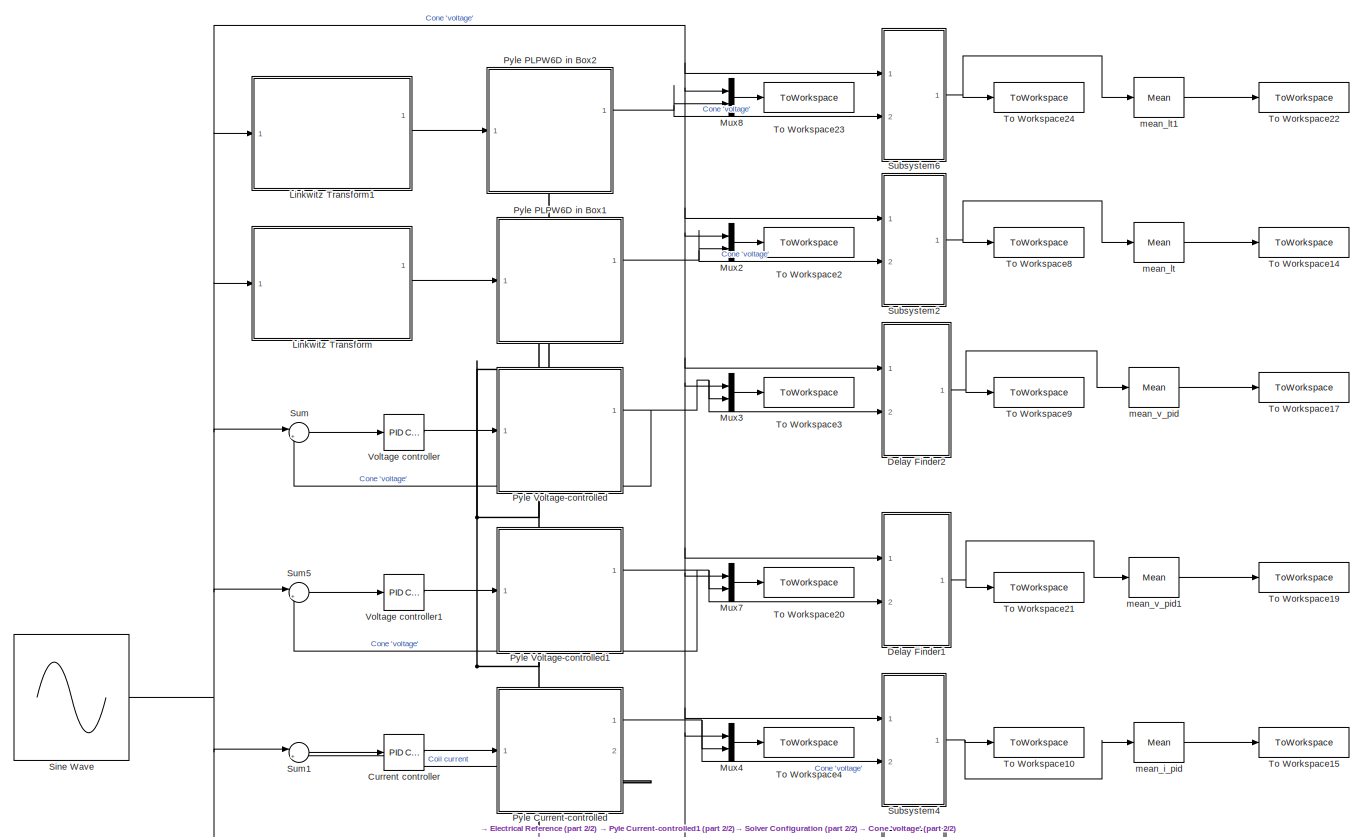
[diagram: root canvas - part 1/2, full width, top band]
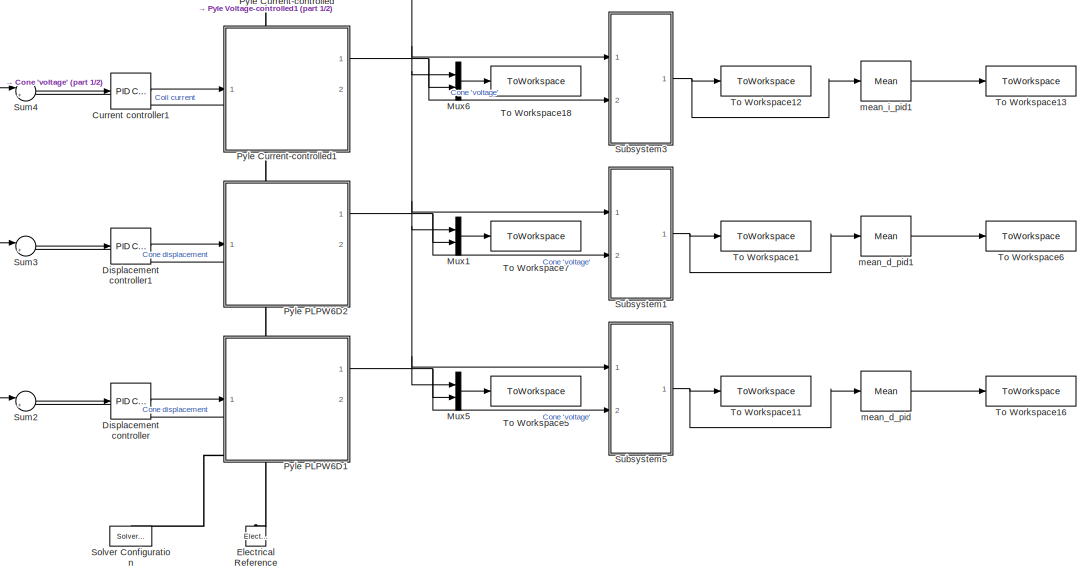
[diagram: root canvas - part 2/2, full width, bottom band]
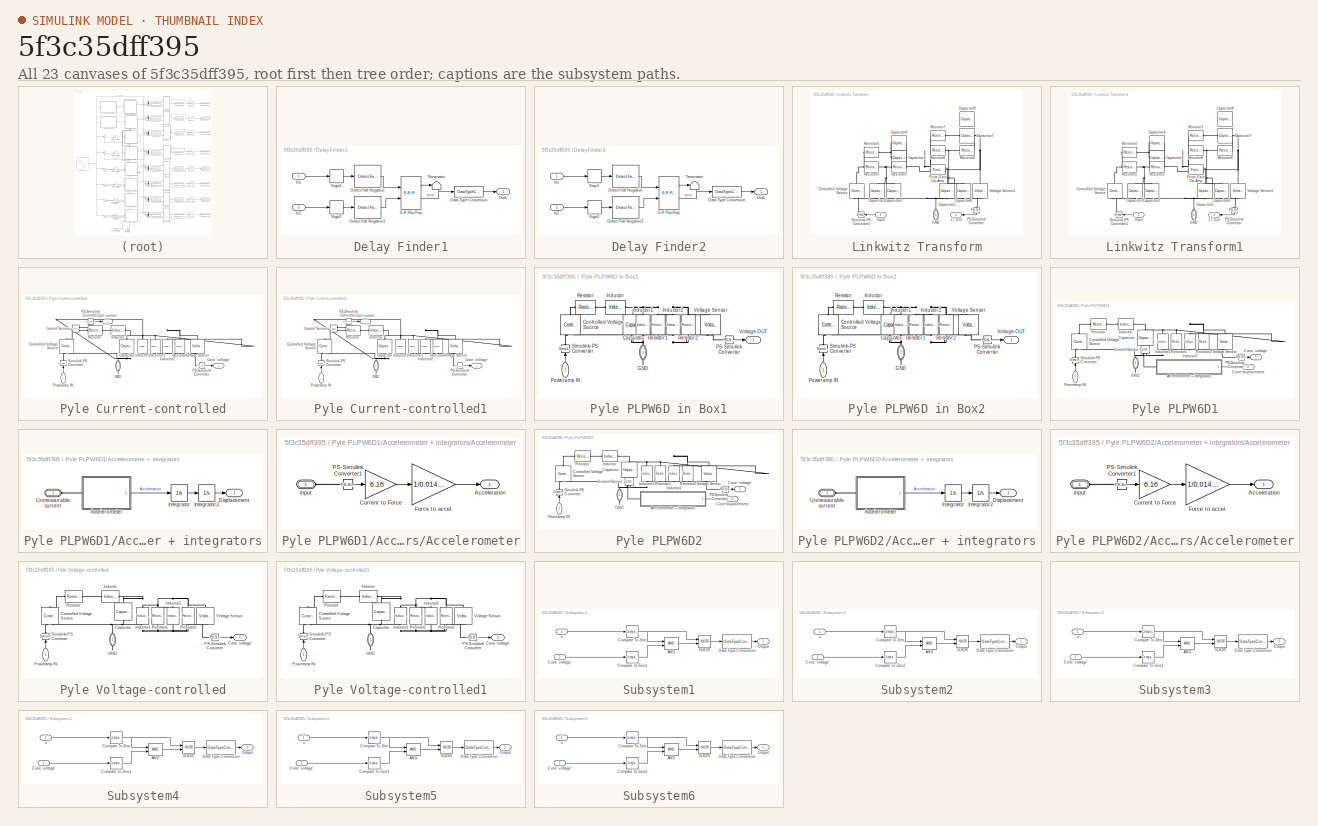
[diagram: thumbnail index - all 23 canvases of the model, root first then tree order]
MODEL slx_5f3c35dff395
KIND model
CONFIG AbsTol = auto
CONFIG EnableMultiTasking = off
CONFIG FixedStep = auto
CONFIG MaxStep = auto
CONFIG MinStep = auto
CONFIG RelTol = 1e-3
CONFIG SampleTimeConstraint = Unconstrained
CONFIG Solver = VariableStepAuto
CONFIG SolverName = VariableStepAuto
CONFIG StartTime = 0.0
CONFIG StopTime = 10.0
BLOCK [Reference] Current controller  REF=simulink/Continuous/PID Controller
  Ports = [1, 1]
  SourceBlock = simulink/Continuous/PID Controller
  SourceProductBaseCode = SL
  SourceType = PID 1dof
BLOCK [Reference] Current controller1  REF=simulink/Continuous/PID Controller
  Ports = [1, 1]
  SourceBlock = simulink/Continuous/PID Controller
  SourceProductBaseCode = SL
  SourceType = PID 1dof
BLOCK [SubSystem] Delay Finder1
  Ports = [2, 1]
  RequestExecContextInheritance = off
BLOCK [DataTypeConversion] Delay Finder1/Data Type Conversion
  OutDataTypeStr = double
  RndMeth = Floor
  SaturateOnIntegerOverflow = off
BLOCK [Reference] Delay Finder1/Detect Fall Negative  REF=simulink/Logic and Bit
Operations/Detect Fall
Negative
  Ports = [1, 1]
  SourceBlock = simulink/Logic and Bit\nOperations/Detect Fall\nNegative
  SourceProductBaseCode = SL
  SourceType = Detect Fall Negative
BLOCK [Reference] Delay Finder1/Detect Fall Negative1  REF=simulink/Logic and Bit
Operations/Detect Fall
Negative
  Ports = [1, 1]
  SourceBlock = simulink/Logic and Bit\nOperations/Detect Fall\nNegative
  SourceProductBaseCode = SL
  SourceType = Detect Fall Negative
BLOCK [Inport] Delay Finder1/In1
BLOCK [Inport] Delay Finder1/In2
  Port = 2
BLOCK [Outport] Delay Finder1/Out1
BLOCK [Reference] Delay Finder1/S-R Flip-Flop  REF=simulink_extras/Flip Flops/S-R
Flip-Flop
  Ports = [2, 2]
  SourceBlock = simulink_extras/Flip Flops/S-R\nFlip-Flop
  SourceProductBaseCode = SL
  SourceType = SRFlipFlop
BLOCK [Signum] Delay Finder1/Sign1
BLOCK [Signum] Delay Finder1/Sign2
BLOCK [Terminator] Delay Finder1/Terminator
BLOCK [SubSystem] Delay Finder2
  Ports = [2, 1]
  RequestExecContextInheritance = off
BLOCK [DataTypeConversion] Delay Finder2/Data Type Conversion
  OutDataTypeStr = double
  RndMeth = Floor
  SaturateOnIntegerOverflow = off
BLOCK [Reference] Delay Finder2/Detect Fall Negative  REF=simulink/Logic and Bit
Operations/Detect Fall
Negative
  Ports = [1, 1]
  SourceBlock = simulink/Logic and Bit\nOperations/Detect Fall\nNegative
  SourceProductBaseCode = SL
  SourceType = Detect Fall Negative
BLOCK [Reference] Delay Finder2/Detect Fall Negative1  REF=simulink/Logic and Bit
Operations/Detect Fall
Negative
  Ports = [1, 1]
  SourceBlock = simulink/Logic and Bit\nOperations/Detect Fall\nNegative
  SourceProductBaseCode = SL
  SourceType = Detect Fall Negative
BLOCK [Inport] Delay Finder2/In1
BLOCK [Inport] Delay Finder2/In2
  Port = 2
BLOCK [Outport] Delay Finder2/Out1
BLOCK [Reference] Delay Finder2/S-R Flip-Flop  REF=simulink_extras/Flip Flops/S-R
Flip-Flop
  Ports = [2, 2]
  SourceBlock = simulink_extras/Flip Flops/S-R\nFlip-Flop
  SourceProductBaseCode = SL
  SourceType = SRFlipFlop
BLOCK [Signum] Delay Finder2/Sign1
BLOCK [Signum] Delay Finder2/Sign2
BLOCK [Terminator] Delay Finder2/Terminator
BLOCK [Reference] Displacement controller  REF=simulink/Continuous/PID Controller
  Ports = [1, 1]
  SourceBlock = simulink/Continuous/PID Controller
  SourceProductBaseCode = SL
  SourceType = PID 1dof
BLOCK [Reference] Displacement controller1  REF=simulink/Continuous/PID Controller
  Ports = [1, 1]
  SourceBlock = simulink/Continuous/PID Controller
  SourceProductBaseCode = SL
  SourceType = PID 1dof
BLOCK [Reference] Electrical Reference  REF=fl_lib/Electrical/Electrical Elements/Electrical Reference
  NameLocation = right
  Ports = [0, 0, 0, 0, 0, 1]
  SourceBlock = fl_lib/Electrical/Electrical Elements/Electrical Reference
  SourceProductBaseCode = SS
  SourceType = Electrical Reference
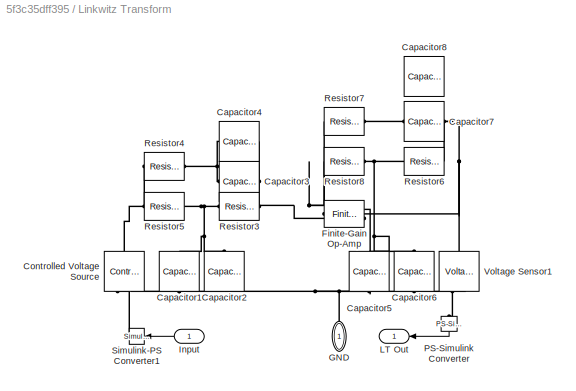
BLOCK [SubSystem] Linkwitz Transform
  PortSchema = {"entries":[{"content":{"sides":[{"content":{"connectorIds":["In1"]},"type":"ConnectorPlacement.EquallySpacedRectSide","uuid":"c176afcd-22cf-4a96-95a5-2f4a01c27625"},{"content":{"connectorIds":["Out1"],"side":"RIGHT"},"type":"ConnectorPlacement.EquallySpacedRectSide","uuid":"3d91d6b3-2fcd-4fa9-a9e2-01e15fe19188"},{"content":{"connectorIds":[],"side":"TOP"},"type":"ConnectorPlacement.EquallySpacedR...<+394ch>
  Ports = [1, 1, 0, 0, 0, 0, 1]
  RequestExecContextInheritance = off
BLOCK [Reference] Linkwitz Transform/Capacitor1  REF=fl_lib/Electrical/Electrical Elements/Capacitor
  NameLocation = left
  Ports = [0, 0, 0, 0, 0, 1, 1]
  SourceBlock = fl_lib/Electrical/Electrical Elements/Capacitor
  SourceProductBaseCode = SS
  SourceType = Capacitor
BLOCK [Reference] Linkwitz Transform/Capacitor2  REF=fl_lib/Electrical/Electrical Elements/Capacitor
  NameLocation = left
  Ports = [0, 0, 0, 0, 0, 1, 1]
  SourceBlock = fl_lib/Electrical/Electrical Elements/Capacitor
  SourceProductBaseCode = SS
  SourceType = Capacitor
BLOCK [Reference] Linkwitz Transform/Capacitor3  REF=fl_lib/Electrical/Electrical Elements/Capacitor
  Ports = [0, 0, 0, 0, 0, 1, 1]
  SourceBlock = fl_lib/Electrical/Electrical Elements/Capacitor
  SourceProductBaseCode = SS
  SourceType = Capacitor
BLOCK [Reference] Linkwitz Transform/Capacitor4  REF=fl_lib/Electrical/Electrical Elements/Capacitor
  Ports = [0, 0, 0, 0, 0, 1, 1]
  SourceBlock = fl_lib/Electrical/Electrical Elements/Capacitor
  SourceProductBaseCode = SS
  SourceType = Capacitor
BLOCK [Reference] Linkwitz Transform/Capacitor5  REF=fl_lib/Electrical/Electrical Elements/Capacitor
  NameLocation = left
  Ports = [0, 0, 0, 0, 0, 1, 1]
  SourceBlock = fl_lib/Electrical/Electrical Elements/Capacitor
  SourceProductBaseCode = SS
  SourceType = Capacitor
BLOCK [Reference] Linkwitz Transform/Capacitor6  REF=fl_lib/Electrical/Electrical Elements/Capacitor
  NameLocation = left
  Ports = [0, 0, 0, 0, 0, 1, 1]
  SourceBlock = fl_lib/Electrical/Electrical Elements/Capacitor
  SourceProductBaseCode = SS
  SourceType = Capacitor
BLOCK [Reference] Linkwitz Transform/Capacitor7  REF=fl_lib/Electrical/Electrical Elements/Capacitor
  Ports = [0, 0, 0, 0, 0, 1, 1]
  SourceBlock = fl_lib/Electrical/Electrical Elements/Capacitor
  SourceProductBaseCode = SS
  SourceType = Capacitor
BLOCK [Reference] Linkwitz Transform/Capacitor8  REF=fl_lib/Electrical/Electrical Elements/Capacitor
  Ports = [0, 0, 0, 0, 0, 1, 1]
  SourceBlock = fl_lib/Electrical/Electrical Elements/Capacitor
  SourceProductBaseCode = SS
  SourceType = Capacitor
BLOCK [Reference] Linkwitz Transform/Controlled Voltage Source  REF=fl_lib/Electrical/Electrical Sources/Controlled Voltage
Source
  NameLocation = right
  Ports = [0, 0, 0, 0, 0, 1, 2]
  SourceBlock = fl_lib/Electrical/Electrical Sources/Controlled Voltage\nSource
  SourceProductBaseCode = SS
  SourceType = Controlled Voltage\nSource
BLOCK [Reference] Linkwitz Transform/Finite-Gain Op-Amp  REF=ee_lib/Integrated Circuits/Finite-Gain Op-Amp
  Ports = [0, 0, 0, 0, 0, 2, 1]
  SourceBlock = ee_lib/Integrated Circuits/Finite-Gain Op-Amp
  SourceProductBaseCode = PS
  SourceType = Finite-Gain Op-Amp
BLOCK [PMIOPort] Linkwitz Transform/GND
  NameLocation = left
  Side = Right
BLOCK [Inport] Linkwitz Transform/Input
  NameLocation = top
BLOCK [Outport] Linkwitz Transform/LT Out
  NameLocation = top
BLOCK [Reference] Linkwitz Transform/PS-Simulink Converter  REF=nesl_utility/PS-Simulink
Converter
  NameLocation = left
  Ports = [0, 1, 0, 0, 0, 1]
  SourceBlock = nesl_utility/PS-Simulink\nConverter
  SourceProductBaseCode = SS
  SourceType = PS-Simulink\nConverter
BLOCK [Reference] Linkwitz Transform/Resistor3  REF=fl_lib/Electrical/Electrical Elements/Resistor
  Ports = [0, 0, 0, 0, 0, 1, 1]
  SourceBlock = fl_lib/Electrical/Electrical Elements/Resistor
  SourceProductBaseCode = SS
  SourceType = Resistor
BLOCK [Reference] Linkwitz Transform/Resistor4  REF=fl_lib/Electrical/Electrical Elements/Resistor
  Ports = [0, 0, 0, 0, 0, 1, 1]
  SourceBlock = fl_lib/Electrical/Electrical Elements/Resistor
  SourceProductBaseCode = SS
  SourceType = Resistor
BLOCK [Reference] Linkwitz Transform/Resistor5  REF=fl_lib/Electrical/Electrical Elements/Resistor
  Ports = [0, 0, 0, 0, 0, 1, 1]
  SourceBlock = fl_lib/Electrical/Electrical Elements/Resistor
  SourceProductBaseCode = SS
  SourceType = Resistor
BLOCK [Reference] Linkwitz Transform/Resistor6  REF=fl_lib/Electrical/Electrical Elements/Resistor
  Ports = [0, 0, 0, 0, 0, 1, 1]
  SourceBlock = fl_lib/Electrical/Electrical Elements/Resistor
  SourceProductBaseCode = SS
  SourceType = Resistor
BLOCK [Reference] Linkwitz Transform/Resistor7  REF=fl_lib/Electrical/Electrical Elements/Resistor
  Ports = [0, 0, 0, 0, 0, 1, 1]
  SourceBlock = fl_lib/Electrical/Electrical Elements/Resistor
  SourceProductBaseCode = SS
  SourceType = Resistor
BLOCK [Reference] Linkwitz Transform/Resistor8  REF=fl_lib/Electrical/Electrical Elements/Resistor
  Ports = [0, 0, 0, 0, 0, 1, 1]
  SourceBlock = fl_lib/Electrical/Electrical Elements/Resistor
  SourceProductBaseCode = SS
  SourceType = Resistor
BLOCK [Reference] Linkwitz Transform/Simulink-PS Converter1  REF=nesl_utility/Simulink-PS
Converter
  NameLocation = top
  Ports = [1, 0, 0, 0, 0, 0, 1]
  SourceBlock = nesl_utility/Simulink-PS\nConverter
  SourceProductBaseCode = SS
  SourceType = Simulink-PS\nConverter
BLOCK [Reference] Linkwitz Transform/Voltage Sensor1  REF=fl_lib/Electrical/Electrical Sensors/Voltage Sensor
  NameLocation = right
  Ports = [0, 0, 0, 0, 0, 1, 2]
  SourceBlock = fl_lib/Electrical/Electrical Sensors/Voltage Sensor
  SourceProductBaseCode = SS
  SourceType = Voltage Sensor
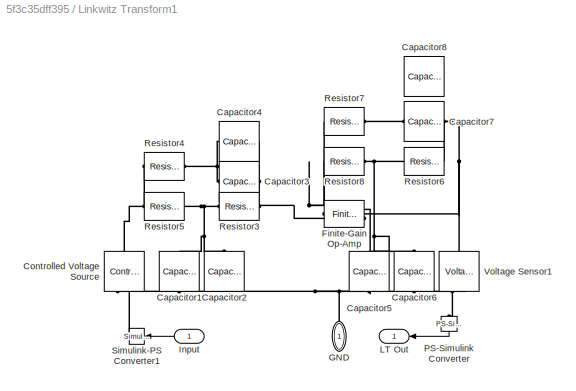
BLOCK [SubSystem] Linkwitz Transform1
  PortSchema = {"entries":[{"content":{"sides":[{"content":{"connectorIds":["In1"]},"type":"ConnectorPlacement.EquallySpacedRectSide","uuid":"c176afcd-22cf-4a96-95a5-2f4a01c27625"},{"content":{"connectorIds":["Out1"],"side":"RIGHT"},"type":"ConnectorPlacement.EquallySpacedRectSide","uuid":"3d91d6b3-2fcd-4fa9-a9e2-01e15fe19188"},{"content":{"connectorIds":[],"side":"TOP"},"type":"ConnectorPlacement.EquallySpacedR...<+394ch>
  Ports = [1, 1, 0, 0, 0, 0, 1]
  RequestExecContextInheritance = off
BLOCK [Reference] Linkwitz Transform1/Capacitor1  REF=fl_lib/Electrical/Electrical Elements/Capacitor
  NameLocation = left
  Ports = [0, 0, 0, 0, 0, 1, 1]
  SourceBlock = fl_lib/Electrical/Electrical Elements/Capacitor
  SourceProductBaseCode = SS
  SourceType = Capacitor
BLOCK [Reference] Linkwitz Transform1/Capacitor2  REF=fl_lib/Electrical/Electrical Elements/Capacitor
  NameLocation = left
  Ports = [0, 0, 0, 0, 0, 1, 1]
  SourceBlock = fl_lib/Electrical/Electrical Elements/Capacitor
  SourceProductBaseCode = SS
  SourceType = Capacitor
BLOCK [Reference] Linkwitz Transform1/Capacitor3  REF=fl_lib/Electrical/Electrical Elements/Capacitor
  Ports = [0, 0, 0, 0, 0, 1, 1]
  SourceBlock = fl_lib/Electrical/Electrical Elements/Capacitor
  SourceProductBaseCode = SS
  SourceType = Capacitor
BLOCK [Reference] Linkwitz Transform1/Capacitor4  REF=fl_lib/Electrical/Electrical Elements/Capacitor
  Ports = [0, 0, 0, 0, 0, 1, 1]
  SourceBlock = fl_lib/Electrical/Electrical Elements/Capacitor
  SourceProductBaseCode = SS
  SourceType = Capacitor
BLOCK [Reference] Linkwitz Transform1/Capacitor5  REF=fl_lib/Electrical/Electrical Elements/Capacitor
  NameLocation = left
  Ports = [0, 0, 0, 0, 0, 1, 1]
  SourceBlock = fl_lib/Electrical/Electrical Elements/Capacitor
  SourceProductBaseCode = SS
  SourceType = Capacitor
BLOCK [Reference] Linkwitz Transform1/Capacitor6  REF=fl_lib/Electrical/Electrical Elements/Capacitor
  NameLocation = left
  Ports = [0, 0, 0, 0, 0, 1, 1]
  SourceBlock = fl_lib/Electrical/Electrical Elements/Capacitor
  SourceProductBaseCode = SS
  SourceType = Capacitor
BLOCK [Reference] Linkwitz Transform1/Capacitor7  REF=fl_lib/Electrical/Electrical Elements/Capacitor
  Ports = [0, 0, 0, 0, 0, 1, 1]
  SourceBlock = fl_lib/Electrical/Electrical Elements/Capacitor
  SourceProductBaseCode = SS
  SourceType = Capacitor
BLOCK [Reference] Linkwitz Transform1/Capacitor8  REF=fl_lib/Electrical/Electrical Elements/Capacitor
  Ports = [0, 0, 0, 0, 0, 1, 1]
  SourceBlock = fl_lib/Electrical/Electrical Elements/Capacitor
  SourceProductBaseCode = SS
  SourceType = Capacitor
BLOCK [Reference] Linkwitz Transform1/Controlled Voltage Source  REF=fl_lib/Electrical/Electrical Sources/Controlled Voltage
Source
  NameLocation = right
  Ports = [0, 0, 0, 0, 0, 1, 2]
  SourceBlock = fl_lib/Electrical/Electrical Sources/Controlled Voltage\nSource
  SourceProductBaseCode = SS
  SourceType = Controlled Voltage\nSource
BLOCK [Reference] Linkwitz Transform1/Finite-Gain Op-Amp  REF=ee_lib/Integrated Circuits/Finite-Gain Op-Amp
  Ports = [0, 0, 0, 0, 0, 2, 1]
  SourceBlock = ee_lib/Integrated Circuits/Finite-Gain Op-Amp
  SourceProductBaseCode = PS
  SourceType = Finite-Gain Op-Amp
BLOCK [PMIOPort] Linkwitz Transform1/GND
  NameLocation = left
  Side = Right
BLOCK [Inport] Linkwitz Transform1/Input
  NameLocation = top
BLOCK [Outport] Linkwitz Transform1/LT Out
  NameLocation = top
BLOCK [Reference] Linkwitz Transform1/PS-Simulink Converter  REF=nesl_utility/PS-Simulink
Converter
  NameLocation = left
  Ports = [0, 1, 0, 0, 0, 1]
  SourceBlock = nesl_utility/PS-Simulink\nConverter
  SourceProductBaseCode = SS
  SourceType = PS-Simulink\nConverter
BLOCK [Reference] Linkwitz Transform1/Resistor3  REF=fl_lib/Electrical/Electrical Elements/Resistor
  Ports = [0, 0, 0, 0, 0, 1, 1]
  SourceBlock = fl_lib/Electrical/Electrical Elements/Resistor
  SourceProductBaseCode = SS
  SourceType = Resistor
BLOCK [Reference] Linkwitz Transform1/Resistor4  REF=fl_lib/Electrical/Electrical Elements/Resistor
  Ports = [0, 0, 0, 0, 0, 1, 1]
  SourceBlock = fl_lib/Electrical/Electrical Elements/Resistor
  SourceProductBaseCode = SS
  SourceType = Resistor
BLOCK [Reference] Linkwitz Transform1/Resistor5  REF=fl_lib/Electrical/Electrical Elements/Resistor
  Ports = [0, 0, 0, 0, 0, 1, 1]
  SourceBlock = fl_lib/Electrical/Electrical Elements/Resistor
  SourceProductBaseCode = SS
  SourceType = Resistor
BLOCK [Reference] Linkwitz Transform1/Resistor6  REF=fl_lib/Electrical/Electrical Elements/Resistor
  Ports = [0, 0, 0, 0, 0, 1, 1]
  SourceBlock = fl_lib/Electrical/Electrical Elements/Resistor
  SourceProductBaseCode = SS
  SourceType = Resistor
BLOCK [Reference] Linkwitz Transform1/Resistor7  REF=fl_lib/Electrical/Electrical Elements/Resistor
  Ports = [0, 0, 0, 0, 0, 1, 1]
  SourceBlock = fl_lib/Electrical/Electrical Elements/Resistor
  SourceProductBaseCode = SS
  SourceType = Resistor
BLOCK [Reference] Linkwitz Transform1/Resistor8  REF=fl_lib/Electrical/Electrical Elements/Resistor
  Ports = [0, 0, 0, 0, 0, 1, 1]
  SourceBlock = fl_lib/Electrical/Electrical Elements/Resistor
  SourceProductBaseCode = SS
  SourceType = Resistor
BLOCK [Reference] Linkwitz Transform1/Simulink-PS Converter1  REF=nesl_utility/Simulink-PS
Converter
  NameLocation = top
  Ports = [1, 0, 0, 0, 0, 0, 1]
  SourceBlock = nesl_utility/Simulink-PS\nConverter
  SourceProductBaseCode = SS
  SourceType = Simulink-PS\nConverter
BLOCK [Reference] Linkwitz Transform1/Voltage Sensor1  REF=fl_lib/Electrical/Electrical Sensors/Voltage Sensor
  NameLocation = right
  Ports = [0, 0, 0, 0, 0, 1, 2]
  SourceBlock = fl_lib/Electrical/Electrical Sensors/Voltage Sensor
  SourceProductBaseCode = SS
  SourceType = Voltage Sensor
BLOCK [Mux] Mux1
  DisplayOption = bar
  Inputs = 2
  Ports = [2, 1]
BLOCK [Mux] Mux2
  DisplayOption = bar
  Inputs = 2
  Ports = [2, 1]
BLOCK [Mux] Mux3
  DisplayOption = bar
  Inputs = 2
  Ports = [2, 1]
BLOCK [Mux] Mux4
  DisplayOption = bar
  Inputs = 2
  Ports = [2, 1]
BLOCK [Mux] Mux5
  DisplayOption = bar
  Inputs = 2
  Ports = [2, 1]
BLOCK [Mux] Mux6
  DisplayOption = bar
  Inputs = 2
  Ports = [2, 1]
BLOCK [Mux] Mux7
  DisplayOption = bar
  Inputs = 2
  Ports = [2, 1]
BLOCK [Mux] Mux8
  DisplayOption = bar
  Inputs = 2
  Ports = [2, 1]
BLOCK [SubSystem] Pyle Current-controlled
  PortSchema = {"entries":[{"content":{"sides":[{"content":{"connectorIds":["In1"]},"type":"ConnectorPlacement.EquallySpacedRectSide","uuid":"55797129-f68c-4c08-9179-5bd73ddaf456"},{"content":{"connectorIds":["Out1"],"side":"RIGHT"},"type":"ConnectorPlacement.EquallySpacedRectSide","uuid":"cd82eb0c-b61b-42dc-852e-e59ea1718ce1"},{"content":{"connectorIds":[],"side":"TOP"},"type":"ConnectorPlacement.EquallySpacedR...<+401ch>  <repeated x4 — deduplicated; at blocks: Pyle Current-controlled, Pyle Current-controlled1, Pyle PLPW6D1, Pyle PLPW6D2>
  Ports = [1, 2, 0, 0, 0, 0, 1]
  RequestExecContextInheritance = off
BLOCK [Reference] Pyle Current-controlled/Capacitor  REF=fl_lib/Electrical/Electrical Elements/Capacitor
  NameLocation = left
  Ports = [0, 0, 0, 0, 0, 1, 1]
  SourceBlock = fl_lib/Electrical/Electrical Elements/Capacitor
  SourceProductBaseCode = SS
  SourceType = Capacitor
BLOCK [Outport] Pyle Current-controlled/Coil current
  Port = 2
BLOCK [Outport] Pyle Current-controlled/Cone 'voltage'
BLOCK [Reference] Pyle Current-controlled/Controlled Voltage Source  REF=fl_lib/Electrical/Electrical Sources/Controlled Voltage
Source
  NameLocation = right
  Ports = [0, 0, 0, 0, 0, 1, 2]
  SourceBlock = fl_lib/Electrical/Electrical Sources/Controlled Voltage\nSource
  SourceProductBaseCode = SS
  SourceType = Controlled Voltage\nSource
BLOCK [Reference] Pyle Current-controlled/Current Sensor  REF=fl_lib/Electrical/Electrical Sensors/Current Sensor
  Ports = [0, 0, 0, 0, 0, 1, 2]
  SourceBlock = fl_lib/Electrical/Electrical Sensors/Current Sensor
  SourceProductBaseCode = MT,SS
  SourceType = Current Sensor
BLOCK [PMIOPort] Pyle Current-controlled/GND
  NameLocation = left
  Side = Right
BLOCK [Reference] Pyle Current-controlled/Inductor  REF=fl_lib/Electrical/Electrical Elements/Inductor
  Ports = [0, 0, 0, 0, 0, 1, 1]
  SourceBlock = fl_lib/Electrical/Electrical Elements/Inductor
  SourceProductBaseCode = SS
  SourceType = Inductor
BLOCK [Reference] Pyle Current-controlled/Inductor1  REF=fl_lib/Electrical/Electrical Elements/Inductor
  NameLocation = left
  Ports = [0, 0, 0, 0, 0, 1, 1]
  SourceBlock = fl_lib/Electrical/Electrical Elements/Inductor
  SourceProductBaseCode = SS
  SourceType = Inductor
BLOCK [Reference] Pyle Current-controlled/Inductor2  REF=fl_lib/Electrical/Electrical Elements/Inductor
  NameLocation = left
  Ports = [0, 0, 0, 0, 0, 1, 1]
  SourceBlock = fl_lib/Electrical/Electrical Elements/Inductor
  SourceProductBaseCode = SS
  SourceType = Inductor
BLOCK [Reference] Pyle Current-controlled/PS-Simulink Converter  REF=nesl_utility/PS-Simulink
Converter
  Ports = [0, 1, 0, 0, 0, 1]
  SourceBlock = nesl_utility/PS-Simulink\nConverter
  SourceProductBaseCode = SS
  SourceType = PS-Simulink\nConverter
BLOCK [Reference] Pyle Current-controlled/PS-Simulink Converter1  REF=nesl_utility/PS-Simulink
Converter
  Ports = [0, 1, 0, 0, 0, 1]
  SourceBlock = nesl_utility/PS-Simulink\nConverter
  SourceProductBaseCode = SS
  SourceType = PS-Simulink\nConverter
BLOCK [Inport] Pyle Current-controlled/Poweramp IN
  NameLocation = right
BLOCK [Reference] Pyle Current-controlled/Resistor  REF=fl_lib/Electrical/Electrical Elements/Resistor
  Ports = [0, 0, 0, 0, 0, 1, 1]
  SourceBlock = fl_lib/Electrical/Electrical Elements/Resistor
  SourceProductBaseCode = SS
  SourceType = Resistor
BLOCK [Reference] Pyle Current-controlled/Resistor1  REF=fl_lib/Electrical/Electrical Elements/Resistor
  NameLocation = left
  Ports = [0, 0, 0, 0, 0, 1, 1]
  SourceBlock = fl_lib/Electrical/Electrical Elements/Resistor
  SourceProductBaseCode = SS
  SourceType = Resistor
BLOCK [Reference] Pyle Current-controlled/Resistor2  REF=fl_lib/Electrical/Electrical Elements/Resistor
  NameLocation = left
  Ports = [0, 0, 0, 0, 0, 1, 1]
  SourceBlock = fl_lib/Electrical/Electrical Elements/Resistor
  SourceProductBaseCode = SS
  SourceType = Resistor
BLOCK [Reference] Pyle Current-controlled/Simulink-PS Converter  REF=nesl_utility/Simulink-PS
Converter
  NameLocation = right
  Ports = [1, 0, 0, 0, 0, 0, 1]
  SourceBlock = nesl_utility/Simulink-PS\nConverter
  SourceProductBaseCode = SS
  SourceType = Simulink-PS\nConverter
BLOCK [Reference] Pyle Current-controlled/Voltage Sensor  REF=fl_lib/Electrical/Electrical Sensors/Voltage Sensor
  NameLocation = right
  Ports = [0, 0, 0, 0, 0, 1, 2]
  SourceBlock = fl_lib/Electrical/Electrical Sensors/Voltage Sensor
  SourceProductBaseCode = SS
  SourceType = Voltage Sensor
BLOCK [SubSystem] Pyle Current-controlled1
  Ports = [1, 2, 0, 0, 0, 0, 1]
  RequestExecContextInheritance = off
BLOCK [Reference] Pyle Current-controlled1/Capacitor  REF=fl_lib/Electrical/Electrical Elements/Capacitor
  NameLocation = left
  Ports = [0, 0, 0, 0, 0, 1, 1]
  SourceBlock = fl_lib/Electrical/Electrical Elements/Capacitor
  SourceProductBaseCode = SS
  SourceType = Capacitor
BLOCK [Outport] Pyle Current-controlled1/Coil current
  Port = 2
BLOCK [Outport] Pyle Current-controlled1/Cone 'voltage'
BLOCK [Reference] Pyle Current-controlled1/Controlled Voltage Source  REF=fl_lib/Electrical/Electrical Sources/Controlled Voltage
Source
  NameLocation = right
  Ports = [0, 0, 0, 0, 0, 1, 2]
  SourceBlock = fl_lib/Electrical/Electrical Sources/Controlled Voltage\nSource
  SourceProductBaseCode = SS
  SourceType = Controlled Voltage\nSource
BLOCK [Reference] Pyle Current-controlled1/Current Sensor  REF=fl_lib/Electrical/Electrical Sensors/Current Sensor
  Ports = [0, 0, 0, 0, 0, 1, 2]
  SourceBlock = fl_lib/Electrical/Electrical Sensors/Current Sensor
  SourceProductBaseCode = MT,SS
  SourceType = Current Sensor
BLOCK [PMIOPort] Pyle Current-controlled1/GND
  NameLocation = left
  Side = Right
BLOCK [Reference] Pyle Current-controlled1/Inductor  REF=fl_lib/Electrical/Electrical Elements/Inductor
  Ports = [0, 0, 0, 0, 0, 1, 1]
  SourceBlock = fl_lib/Electrical/Electrical Elements/Inductor
  SourceProductBaseCode = SS
  SourceType = Inductor
BLOCK [Reference] Pyle Current-controlled1/Inductor1  REF=fl_lib/Electrical/Electrical Elements/Inductor
  NameLocation = left
  Ports = [0, 0, 0, 0, 0, 1, 1]
  SourceBlock = fl_lib/Electrical/Electrical Elements/Inductor
  SourceProductBaseCode = SS
  SourceType = Inductor
BLOCK [Reference] Pyle Current-controlled1/Inductor2  REF=fl_lib/Electrical/Electrical Elements/Inductor
  NameLocation = left
  Ports = [0, 0, 0, 0, 0, 1, 1]
  SourceBlock = fl_lib/Electrical/Electrical Elements/Inductor
  SourceProductBaseCode = SS
  SourceType = Inductor
BLOCK [Reference] Pyle Current-controlled1/PS-Simulink Converter  REF=nesl_utility/PS-Simulink
Converter
  Ports = [0, 1, 0, 0, 0, 1]
  SourceBlock = nesl_utility/PS-Simulink\nConverter
  SourceProductBaseCode = SS
  SourceType = PS-Simulink\nConverter
BLOCK [Reference] Pyle Current-controlled1/PS-Simulink Converter1  REF=nesl_utility/PS-Simulink
Converter
  Ports = [0, 1, 0, 0, 0, 1]
  SourceBlock = nesl_utility/PS-Simulink\nConverter
  SourceProductBaseCode = SS
  SourceType = PS-Simulink\nConverter
BLOCK [Inport] Pyle Current-controlled1/Poweramp IN
  NameLocation = right
BLOCK [Reference] Pyle Current-controlled1/Resistor  REF=fl_lib/Electrical/Electrical Elements/Resistor
  Ports = [0, 0, 0, 0, 0, 1, 1]
  SourceBlock = fl_lib/Electrical/Electrical Elements/Resistor
  SourceProductBaseCode = SS
  SourceType = Resistor
BLOCK [Reference] Pyle Current-controlled1/Resistor1  REF=fl_lib/Electrical/Electrical Elements/Resistor
  NameLocation = left
  Ports = [0, 0, 0, 0, 0, 1, 1]
  SourceBlock = fl_lib/Electrical/Electrical Elements/Resistor
  SourceProductBaseCode = SS
  SourceType = Resistor
BLOCK [Reference] Pyle Current-controlled1/Resistor2  REF=fl_lib/Electrical/Electrical Elements/Resistor
  NameLocation = left
  Ports = [0, 0, 0, 0, 0, 1, 1]
  SourceBlock = fl_lib/Electrical/Electrical Elements/Resistor
  SourceProductBaseCode = SS
  SourceType = Resistor
BLOCK [Reference] Pyle Current-controlled1/Simulink-PS Converter  REF=nesl_utility/Simulink-PS
Converter
  NameLocation = right
  Ports = [1, 0, 0, 0, 0, 0, 1]
  SourceBlock = nesl_utility/Simulink-PS\nConverter
  SourceProductBaseCode = SS
  SourceType = Simulink-PS\nConverter
BLOCK [Reference] Pyle Current-controlled1/Voltage Sensor  REF=fl_lib/Electrical/Electrical Sensors/Voltage Sensor
  NameLocation = right
  Ports = [0, 0, 0, 0, 0, 1, 2]
  SourceBlock = fl_lib/Electrical/Electrical Sensors/Voltage Sensor
  SourceProductBaseCode = SS
  SourceType = Voltage Sensor
BLOCK [SubSystem] Pyle PLPW6D in Box1
  PortSchema = {"entries":[{"content":{"sides":[{"content":{"connectorIds":["In1"]},"type":"ConnectorPlacement.EquallySpacedRectSide","uuid":"55797129-f68c-4c08-9179-5bd73ddaf456"},{"content":{"connectorIds":["Out1"],"side":"RIGHT"},"type":"ConnectorPlacement.EquallySpacedRectSide","uuid":"cd82eb0c-b61b-42dc-852e-e59ea1718ce1"},{"content":{"connectorIds":[],"side":"TOP"},"type":"ConnectorPlacement.EquallySpacedR...<+394ch>  <repeated x4 — deduplicated; at blocks: Pyle PLPW6D in Box1, Pyle PLPW6D in Box2, Pyle Voltage-controlled, Pyle Voltage-controlled1>
  Ports = [1, 1, 0, 0, 0, 0, 1]
  RequestExecContextInheritance = off
BLOCK [Reference] Pyle PLPW6D in Box1/Capacitor  REF=fl_lib/Electrical/Electrical Elements/Capacitor
  NameLocation = left
  Ports = [0, 0, 0, 0, 0, 1, 1]
  SourceBlock = fl_lib/Electrical/Electrical Elements/Capacitor
  SourceProductBaseCode = SS
  SourceType = Capacitor
BLOCK [Reference] Pyle PLPW6D in Box1/Controlled Voltage Source  REF=fl_lib/Electrical/Electrical Sources/Controlled Voltage
Source
  NameLocation = right
  Ports = [0, 0, 0, 0, 0, 1, 2]
  SourceBlock = fl_lib/Electrical/Electrical Sources/Controlled Voltage\nSource
  SourceProductBaseCode = SS
  SourceType = Controlled Voltage\nSource
BLOCK [PMIOPort] Pyle PLPW6D in Box1/GND
  NameLocation = left
  Side = Right
BLOCK [Reference] Pyle PLPW6D in Box1/Inductor  REF=fl_lib/Electrical/Electrical Elements/Inductor
  Ports = [0, 0, 0, 0, 0, 1, 1]
  SourceBlock = fl_lib/Electrical/Electrical Elements/Inductor
  SourceProductBaseCode = SS
  SourceType = Inductor
BLOCK [Reference] Pyle PLPW6D in Box1/Inductor1  REF=fl_lib/Electrical/Electrical Elements/Inductor
  NameLocation = left
  Ports = [0, 0, 0, 0, 0, 1, 1]
  SourceBlock = fl_lib/Electrical/Electrical Elements/Inductor
  SourceProductBaseCode = SS
  SourceType = Inductor
BLOCK [Reference] Pyle PLPW6D in Box1/Inductor2  REF=fl_lib/Electrical/Electrical Elements/Inductor
  NameLocation = left
  Ports = [0, 0, 0, 0, 0, 1, 1]
  SourceBlock = fl_lib/Electrical/Electrical Elements/Inductor
  SourceProductBaseCode = SS
  SourceType = Inductor
BLOCK [Reference] Pyle PLPW6D in Box1/PS-Simulink Converter  REF=nesl_utility/PS-Simulink
Converter
  Ports = [0, 1, 0, 0, 0, 1]
  SourceBlock = nesl_utility/PS-Simulink\nConverter
  SourceProductBaseCode = SS
  SourceType = PS-Simulink\nConverter
BLOCK [Inport] Pyle PLPW6D in Box1/Poweramp IN
  NameLocation = right
BLOCK [Reference] Pyle PLPW6D in Box1/Resistor  REF=fl_lib/Electrical/Electrical Elements/Resistor
  Ports = [0, 0, 0, 0, 0, 1, 1]
  SourceBlock = fl_lib/Electrical/Electrical Elements/Resistor
  SourceProductBaseCode = SS
  SourceType = Resistor
BLOCK [Reference] Pyle PLPW6D in Box1/Resistor1  REF=fl_lib/Electrical/Electrical Elements/Resistor
  NameLocation = left
  Ports = [0, 0, 0, 0, 0, 1, 1]
  SourceBlock = fl_lib/Electrical/Electrical Elements/Resistor
  SourceProductBaseCode = SS
  SourceType = Resistor
BLOCK [Reference] Pyle PLPW6D in Box1/Resistor2  REF=fl_lib/Electrical/Electrical Elements/Resistor
  NameLocation = left
  Ports = [0, 0, 0, 0, 0, 1, 1]
  SourceBlock = fl_lib/Electrical/Electrical Elements/Resistor
  SourceProductBaseCode = SS
  SourceType = Resistor
BLOCK [Reference] Pyle PLPW6D in Box1/Simulink-PS Converter  REF=nesl_utility/Simulink-PS
Converter
  NameLocation = right
  Ports = [1, 0, 0, 0, 0, 0, 1]
  SourceBlock = nesl_utility/Simulink-PS\nConverter
  SourceProductBaseCode = SS
  SourceType = Simulink-PS\nConverter
BLOCK [Outport] Pyle PLPW6D in Box1/Voltage OUT
BLOCK [Reference] Pyle PLPW6D in Box1/Voltage Sensor  REF=fl_lib/Electrical/Electrical Sensors/Voltage Sensor
  NameLocation = right
  Ports = [0, 0, 0, 0, 0, 1, 2]
  SourceBlock = fl_lib/Electrical/Electrical Sensors/Voltage Sensor
  SourceProductBaseCode = SS
  SourceType = Voltage Sensor
BLOCK [SubSystem] Pyle PLPW6D in Box2
  Ports = [1, 1, 0, 0, 0, 0, 1]
  RequestExecContextInheritance = off
BLOCK [Reference] Pyle PLPW6D in Box2/Capacitor  REF=fl_lib/Electrical/Electrical Elements/Capacitor
  NameLocation = left
  Ports = [0, 0, 0, 0, 0, 1, 1]
  SourceBlock = fl_lib/Electrical/Electrical Elements/Capacitor
  SourceProductBaseCode = SS
  SourceType = Capacitor
BLOCK [Reference] Pyle PLPW6D in Box2/Controlled Voltage Source  REF=fl_lib/Electrical/Electrical Sources/Controlled Voltage
Source
  NameLocation = right
  Ports = [0, 0, 0, 0, 0, 1, 2]
  SourceBlock = fl_lib/Electrical/Electrical Sources/Controlled Voltage\nSource
  SourceProductBaseCode = SS
  SourceType = Controlled Voltage\nSource
BLOCK [PMIOPort] Pyle PLPW6D in Box2/GND
  NameLocation = left
  Side = Right
BLOCK [Reference] Pyle PLPW6D in Box2/Inductor  REF=fl_lib/Electrical/Electrical Elements/Inductor
  Ports = [0, 0, 0, 0, 0, 1, 1]
  SourceBlock = fl_lib/Electrical/Electrical Elements/Inductor
  SourceProductBaseCode = SS
  SourceType = Inductor
BLOCK [Reference] Pyle PLPW6D in Box2/Inductor1  REF=fl_lib/Electrical/Electrical Elements/Inductor
  NameLocation = left
  Ports = [0, 0, 0, 0, 0, 1, 1]
  SourceBlock = fl_lib/Electrical/Electrical Elements/Inductor
  SourceProductBaseCode = SS
  SourceType = Inductor
BLOCK [Reference] Pyle PLPW6D in Box2/Inductor2  REF=fl_lib/Electrical/Electrical Elements/Inductor
  NameLocation = left
  Ports = [0, 0, 0, 0, 0, 1, 1]
  SourceBlock = fl_lib/Electrical/Electrical Elements/Inductor
  SourceProductBaseCode = SS
  SourceType = Inductor
BLOCK [Reference] Pyle PLPW6D in Box2/PS-Simulink Converter  REF=nesl_utility/PS-Simulink
Converter
  Ports = [0, 1, 0, 0, 0, 1]
  SourceBlock = nesl_utility/PS-Simulink\nConverter
  SourceProductBaseCode = SS
  SourceType = PS-Simulink\nConverter
BLOCK [Inport] Pyle PLPW6D in Box2/Poweramp IN
  NameLocation = right
BLOCK [Reference] Pyle PLPW6D in Box2/Resistor  REF=fl_lib/Electrical/Electrical Elements/Resistor
  Ports = [0, 0, 0, 0, 0, 1, 1]
  SourceBlock = fl_lib/Electrical/Electrical Elements/Resistor
  SourceProductBaseCode = SS
  SourceType = Resistor
BLOCK [Reference] Pyle PLPW6D in Box2/Resistor1  REF=fl_lib/Electrical/Electrical Elements/Resistor
  NameLocation = left
  Ports = [0, 0, 0, 0, 0, 1, 1]
  SourceBlock = fl_lib/Electrical/Electrical Elements/Resistor
  SourceProductBaseCode = SS
  SourceType = Resistor
BLOCK [Reference] Pyle PLPW6D in Box2/Resistor2  REF=fl_lib/Electrical/Electrical Elements/Resistor
  NameLocation = left
  Ports = [0, 0, 0, 0, 0, 1, 1]
  SourceBlock = fl_lib/Electrical/Electrical Elements/Resistor
  SourceProductBaseCode = SS
  SourceType = Resistor
BLOCK [Reference] Pyle PLPW6D in Box2/Simulink-PS Converter  REF=nesl_utility/Simulink-PS
Converter
  NameLocation = right
  Ports = [1, 0, 0, 0, 0, 0, 1]
  SourceBlock = nesl_utility/Simulink-PS\nConverter
  SourceProductBaseCode = SS
  SourceType = Simulink-PS\nConverter
BLOCK [Outport] Pyle PLPW6D in Box2/Voltage OUT
BLOCK [Reference] Pyle PLPW6D in Box2/Voltage Sensor  REF=fl_lib/Electrical/Electrical Sensors/Voltage Sensor
  NameLocation = right
  Ports = [0, 0, 0, 0, 0, 1, 2]
  SourceBlock = fl_lib/Electrical/Electrical Sensors/Voltage Sensor
  SourceProductBaseCode = SS
  SourceType = Voltage Sensor
BLOCK [SubSystem] Pyle PLPW6D1
  Ports = [1, 2, 0, 0, 0, 0, 1]
  RequestExecContextInheritance = off
BLOCK [SubSystem] Pyle PLPW6D1/Accelerometer + integrators
  Ports = [0, 1, 0, 0, 0, 1]
  RequestExecContextInheritance = off
BLOCK [SubSystem] Pyle PLPW6D1/Accelerometer + integrators/Accelerometer
  Ports = [0, 1, 0, 0, 0, 1]
  RequestExecContextInheritance = off
BLOCK [Outport] Pyle PLPW6D1/Accelerometer + integrators/Accelerometer/Acceleration
BLOCK [Gain] Pyle PLPW6D1/Accelerometer + integrators/Accelerometer/Current to Force
  Gain = 6.16
BLOCK [Gain] Pyle PLPW6D1/Accelerometer + integrators/Accelerometer/Force to accel.
  Gain = 1/0.01476
BLOCK [Reference] Pyle PLPW6D1/Accelerometer + integrators/Accelerometer/PS-Simulink Converter1  REF=nesl_utility/PS-Simulink
Converter
  Ports = [0, 1, 0, 0, 0, 1]
  SourceBlock = nesl_utility/PS-Simulink\nConverter
  SourceProductBaseCode = SS
  SourceType = PS-Simulink\nConverter
BLOCK [PMIOPort] Pyle PLPW6D1/Accelerometer + integrators/Accelerometer/input
  Side = Left
BLOCK [Outport] Pyle PLPW6D1/Accelerometer + integrators/Displacement
BLOCK [Integrator] Pyle PLPW6D1/Accelerometer + integrators/Integrator
  Ports = [1, 1]
BLOCK [Integrator] Pyle PLPW6D1/Accelerometer + integrators/Integrator2
  Ports = [1, 1]
BLOCK [PMIOPort] Pyle PLPW6D1/Accelerometer + integrators/Unmeasurable current
  Side = Left
BLOCK [Reference] Pyle PLPW6D1/Capacitor  REF=fl_lib/Electrical/Electrical Elements/Capacitor
  NameLocation = left
  Ports = [0, 0, 0, 0, 0, 1, 1]
  SourceBlock = fl_lib/Electrical/Electrical Elements/Capacitor
  SourceProductBaseCode = SS
  SourceType = Capacitor
BLOCK [Outport] Pyle PLPW6D1/Cone 'voltage'
BLOCK [Outport] Pyle PLPW6D1/Cone displacement
  Port = 2
BLOCK [Reference] Pyle PLPW6D1/Controlled Voltage Source  REF=fl_lib/Electrical/Electrical Sources/Controlled Voltage
Source
  NameLocation = right
  Ports = [0, 0, 0, 0, 0, 1, 2]
  SourceBlock = fl_lib/Electrical/Electrical Sources/Controlled Voltage\nSource
  SourceProductBaseCode = SS
  SourceType = Controlled Voltage\nSource
BLOCK [Reference] Pyle PLPW6D1/Current Sensor  REF=fl_lib/Electrical/Electrical Sensors/Current Sensor
  NameLocation = left
  Ports = [0, 0, 0, 0, 0, 1, 2]
  SourceBlock = fl_lib/Electrical/Electrical Sensors/Current Sensor
  SourceProductBaseCode = SS
  SourceType = Current Sensor
BLOCK [PMIOPort] Pyle PLPW6D1/GND
  NameLocation = left
  Side = Right
BLOCK [Reference] Pyle PLPW6D1/Inductor  REF=fl_lib/Electrical/Electrical Elements/Inductor
  Ports = [0, 0, 0, 0, 0, 1, 1]
  SourceBlock = fl_lib/Electrical/Electrical Elements/Inductor
  SourceProductBaseCode = SS
  SourceType = Inductor
BLOCK [Reference] Pyle PLPW6D1/Inductor1  REF=fl_lib/Electrical/Electrical Elements/Inductor
  NameLocation = left
  Ports = [0, 0, 0, 0, 0, 1, 1]
  SourceBlock = fl_lib/Electrical/Electrical Elements/Inductor
  SourceProductBaseCode = SS
  SourceType = Inductor
BLOCK [Reference] Pyle PLPW6D1/Inductor2  REF=fl_lib/Electrical/Electrical Elements/Inductor
  NameLocation = left
  Ports = [0, 0, 0, 0, 0, 1, 1]
  SourceBlock = fl_lib/Electrical/Electrical Elements/Inductor
  SourceProductBaseCode = SS
  SourceType = Inductor
BLOCK [Reference] Pyle PLPW6D1/PS-Simulink Converter  REF=nesl_utility/PS-Simulink
Converter
  Ports = [0, 1, 0, 0, 0, 1]
  SourceBlock = nesl_utility/PS-Simulink\nConverter
  SourceProductBaseCode = SS
  SourceType = PS-Simulink\nConverter
BLOCK [Inport] Pyle PLPW6D1/Poweramp IN
  NameLocation = right
BLOCK [Reference] Pyle PLPW6D1/Resistor  REF=fl_lib/Electrical/Electrical Elements/Resistor
  Ports = [0, 0, 0, 0, 0, 1, 1]
  SourceBlock = fl_lib/Electrical/Electrical Elements/Resistor
  SourceProductBaseCode = SS
  SourceType = Resistor
BLOCK [Reference] Pyle PLPW6D1/Resistor1  REF=fl_lib/Electrical/Electrical Elements/Resistor
  NameLocation = left
  Ports = [0, 0, 0, 0, 0, 1, 1]
  SourceBlock = fl_lib/Electrical/Electrical Elements/Resistor
  SourceProductBaseCode = SS
  SourceType = Resistor
BLOCK [Reference] Pyle PLPW6D1/Resistor2  REF=fl_lib/Electrical/Electrical Elements/Resistor
  NameLocation = left
  Ports = [0, 0, 0, 0, 0, 1, 1]
  SourceBlock = fl_lib/Electrical/Electrical Elements/Resistor
  SourceProductBaseCode = SS
  SourceType = Resistor
BLOCK [Reference] Pyle PLPW6D1/Simulink-PS Converter  REF=nesl_utility/Simulink-PS
Converter
  NameLocation = right
  Ports = [1, 0, 0, 0, 0, 0, 1]
  SourceBlock = nesl_utility/Simulink-PS\nConverter
  SourceProductBaseCode = SS
  SourceType = Simulink-PS\nConverter
BLOCK [Reference] Pyle PLPW6D1/Voltage Sensor  REF=fl_lib/Electrical/Electrical Sensors/Voltage Sensor
  NameLocation = right
  Ports = [0, 0, 0, 0, 0, 1, 2]
  SourceBlock = fl_lib/Electrical/Electrical Sensors/Voltage Sensor
  SourceProductBaseCode = SS
  SourceType = Voltage Sensor
BLOCK [SubSystem] Pyle PLPW6D2
  Ports = [1, 2, 0, 0, 0, 0, 1]
  RequestExecContextInheritance = off
BLOCK [SubSystem] Pyle PLPW6D2/Accelerometer + integrators
  Ports = [0, 1, 0, 0, 0, 1]
  RequestExecContextInheritance = off
BLOCK [SubSystem] Pyle PLPW6D2/Accelerometer + integrators/Accelerometer
  Ports = [0, 1, 0, 0, 0, 1]
  RequestExecContextInheritance = off
BLOCK [Outport] Pyle PLPW6D2/Accelerometer + integrators/Accelerometer/Acceleration
BLOCK [Gain] Pyle PLPW6D2/Accelerometer + integrators/Accelerometer/Current to Force
  Gain = 6.16
BLOCK [Gain] Pyle PLPW6D2/Accelerometer + integrators/Accelerometer/Force to accel.
  Gain = 1/0.01476
BLOCK [Reference] Pyle PLPW6D2/Accelerometer + integrators/Accelerometer/PS-Simulink Converter1  REF=nesl_utility/PS-Simulink
Converter
  Ports = [0, 1, 0, 0, 0, 1]
  SourceBlock = nesl_utility/PS-Simulink\nConverter
  SourceProductBaseCode = SS
  SourceType = PS-Simulink\nConverter
BLOCK [PMIOPort] Pyle PLPW6D2/Accelerometer + integrators/Accelerometer/input
  Side = Left
BLOCK [Outport] Pyle PLPW6D2/Accelerometer + integrators/Displacement
BLOCK [Integrator] Pyle PLPW6D2/Accelerometer + integrators/Integrator
  Ports = [1, 1]
BLOCK [Integrator] Pyle PLPW6D2/Accelerometer + integrators/Integrator2
  Ports = [1, 1]
BLOCK [PMIOPort] Pyle PLPW6D2/Accelerometer + integrators/Unmeasurable current
  Side = Left
BLOCK [Reference] Pyle PLPW6D2/Capacitor  REF=fl_lib/Electrical/Electrical Elements/Capacitor
  NameLocation = left
  Ports = [0, 0, 0, 0, 0, 1, 1]
  SourceBlock = fl_lib/Electrical/Electrical Elements/Capacitor
  SourceProductBaseCode = SS
  SourceType = Capacitor
BLOCK [Outport] Pyle PLPW6D2/Cone 'voltage'
BLOCK [Outport] Pyle PLPW6D2/Cone displacement
  Port = 2
BLOCK [Reference] Pyle PLPW6D2/Controlled Voltage Source  REF=fl_lib/Electrical/Electrical Sources/Controlled Voltage
Source
  NameLocation = right
  Ports = [0, 0, 0, 0, 0, 1, 2]
  SourceBlock = fl_lib/Electrical/Electrical Sources/Controlled Voltage\nSource
  SourceProductBaseCode = SS
  SourceType = Controlled Voltage\nSource
BLOCK [Reference] Pyle PLPW6D2/Current Sensor  REF=fl_lib/Electrical/Electrical Sensors/Current Sensor
  NameLocation = left
  Ports = [0, 0, 0, 0, 0, 1, 2]
  SourceBlock = fl_lib/Electrical/Electrical Sensors/Current Sensor
  SourceProductBaseCode = SS
  SourceType = Current Sensor
BLOCK [PMIOPort] Pyle PLPW6D2/GND
  NameLocation = left
  Side = Right
BLOCK [Reference] Pyle PLPW6D2/Inductor  REF=fl_lib/Electrical/Electrical Elements/Inductor
  Ports = [0, 0, 0, 0, 0, 1, 1]
  SourceBlock = fl_lib/Electrical/Electrical Elements/Inductor
  SourceProductBaseCode = SS
  SourceType = Inductor
BLOCK [Reference] Pyle PLPW6D2/Inductor1  REF=fl_lib/Electrical/Electrical Elements/Inductor
  NameLocation = left
  Ports = [0, 0, 0, 0, 0, 1, 1]
  SourceBlock = fl_lib/Electrical/Electrical Elements/Inductor
  SourceProductBaseCode = SS
  SourceType = Inductor
BLOCK [Reference] Pyle PLPW6D2/Inductor2  REF=fl_lib/Electrical/Electrical Elements/Inductor
  NameLocation = left
  Ports = [0, 0, 0, 0, 0, 1, 1]
  SourceBlock = fl_lib/Electrical/Electrical Elements/Inductor
  SourceProductBaseCode = SS
  SourceType = Inductor
BLOCK [Reference] Pyle PLPW6D2/PS-Simulink Converter  REF=nesl_utility/PS-Simulink
Converter
  Ports = [0, 1, 0, 0, 0, 1]
  SourceBlock = nesl_utility/PS-Simulink\nConverter
  SourceProductBaseCode = SS
  SourceType = PS-Simulink\nConverter
BLOCK [Inport] Pyle PLPW6D2/Poweramp IN
  NameLocation = right
BLOCK [Reference] Pyle PLPW6D2/Resistor  REF=fl_lib/Electrical/Electrical Elements/Resistor
  Ports = [0, 0, 0, 0, 0, 1, 1]
  SourceBlock = fl_lib/Electrical/Electrical Elements/Resistor
  SourceProductBaseCode = SS
  SourceType = Resistor
BLOCK [Reference] Pyle PLPW6D2/Resistor1  REF=fl_lib/Electrical/Electrical Elements/Resistor
  NameLocation = left
  Ports = [0, 0, 0, 0, 0, 1, 1]
  SourceBlock = fl_lib/Electrical/Electrical Elements/Resistor
  SourceProductBaseCode = SS
  SourceType = Resistor
BLOCK [Reference] Pyle PLPW6D2/Resistor2  REF=fl_lib/Electrical/Electrical Elements/Resistor
  NameLocation = left
  Ports = [0, 0, 0, 0, 0, 1, 1]
  SourceBlock = fl_lib/Electrical/Electrical Elements/Resistor
  SourceProductBaseCode = SS
  SourceType = Resistor
BLOCK [Reference] Pyle PLPW6D2/Simulink-PS Converter  REF=nesl_utility/Simulink-PS
Converter
  NameLocation = right
  Ports = [1, 0, 0, 0, 0, 0, 1]
  SourceBlock = nesl_utility/Simulink-PS\nConverter
  SourceProductBaseCode = SS
  SourceType = Simulink-PS\nConverter
BLOCK [Reference] Pyle PLPW6D2/Voltage Sensor  REF=fl_lib/Electrical/Electrical Sensors/Voltage Sensor
  NameLocation = right
  Ports = [0, 0, 0, 0, 0, 1, 2]
  SourceBlock = fl_lib/Electrical/Electrical Sensors/Voltage Sensor
  SourceProductBaseCode = SS
  SourceType = Voltage Sensor
BLOCK [SubSystem] Pyle Voltage-controlled
  Ports = [1, 1, 0, 0, 0, 0, 1]
  RequestExecContextInheritance = off
BLOCK [Reference] Pyle Voltage-controlled/Capacitor  REF=fl_lib/Electrical/Electrical Elements/Capacitor
  NameLocation = left
  Ports = [0, 0, 0, 0, 0, 1, 1]
  SourceBlock = fl_lib/Electrical/Electrical Elements/Capacitor
  SourceProductBaseCode = SS
  SourceType = Capacitor
BLOCK [Outport] Pyle Voltage-controlled/Cone 'voltage'
BLOCK [Reference] Pyle Voltage-controlled/Controlled Voltage Source  REF=fl_lib/Electrical/Electrical Sources/Controlled Voltage
Source
  NameLocation = right
  Ports = [0, 0, 0, 0, 0, 1, 2]
  SourceBlock = fl_lib/Electrical/Electrical Sources/Controlled Voltage\nSource
  SourceProductBaseCode = SS
  SourceType = Controlled Voltage\nSource
BLOCK [PMIOPort] Pyle Voltage-controlled/GND
  NameLocation = left
  Side = Right
BLOCK [Reference] Pyle Voltage-controlled/Inductor  REF=fl_lib/Electrical/Electrical Elements/Inductor
  Ports = [0, 0, 0, 0, 0, 1, 1]
  SourceBlock = fl_lib/Electrical/Electrical Elements/Inductor
  SourceProductBaseCode = SS
  SourceType = Inductor
BLOCK [Reference] Pyle Voltage-controlled/Inductor1  REF=fl_lib/Electrical/Electrical Elements/Inductor
  NameLocation = left
  Ports = [0, 0, 0, 0, 0, 1, 1]
  SourceBlock = fl_lib/Electrical/Electrical Elements/Inductor
  SourceProductBaseCode = SS
  SourceType = Inductor
BLOCK [Reference] Pyle Voltage-controlled/Inductor2  REF=fl_lib/Electrical/Electrical Elements/Inductor
  NameLocation = left
  Ports = [0, 0, 0, 0, 0, 1, 1]
  SourceBlock = fl_lib/Electrical/Electrical Elements/Inductor
  SourceProductBaseCode = SS
  SourceType = Inductor
BLOCK [Reference] Pyle Voltage-controlled/PS-Simulink Converter  REF=nesl_utility/PS-Simulink
Converter
  Ports = [0, 1, 0, 0, 0, 1]
  SourceBlock = nesl_utility/PS-Simulink\nConverter
  SourceProductBaseCode = SS
  SourceType = PS-Simulink\nConverter
BLOCK [Inport] Pyle Voltage-controlled/Poweramp IN
  NameLocation = right
BLOCK [Reference] Pyle Voltage-controlled/Resistor  REF=fl_lib/Electrical/Electrical Elements/Resistor
  Ports = [0, 0, 0, 0, 0, 1, 1]
  SourceBlock = fl_lib/Electrical/Electrical Elements/Resistor
  SourceProductBaseCode = SS
  SourceType = Resistor
BLOCK [Reference] Pyle Voltage-controlled/Resistor1  REF=fl_lib/Electrical/Electrical Elements/Resistor
  NameLocation = left
  Ports = [0, 0, 0, 0, 0, 1, 1]
  SourceBlock = fl_lib/Electrical/Electrical Elements/Resistor
  SourceProductBaseCode = SS
  SourceType = Resistor
BLOCK [Reference] Pyle Voltage-controlled/Resistor2  REF=fl_lib/Electrical/Electrical Elements/Resistor
  NameLocation = left
  Ports = [0, 0, 0, 0, 0, 1, 1]
  SourceBlock = fl_lib/Electrical/Electrical Elements/Resistor
  SourceProductBaseCode = SS
  SourceType = Resistor
BLOCK [Reference] Pyle Voltage-controlled/Simulink-PS Converter  REF=nesl_utility/Simulink-PS
Converter
  NameLocation = right
  Ports = [1, 0, 0, 0, 0, 0, 1]
  SourceBlock = nesl_utility/Simulink-PS\nConverter
  SourceProductBaseCode = SS
  SourceType = Simulink-PS\nConverter
BLOCK [Reference] Pyle Voltage-controlled/Voltage Sensor  REF=fl_lib/Electrical/Electrical Sensors/Voltage Sensor
  NameLocation = right
  Ports = [0, 0, 0, 0, 0, 1, 2]
  SourceBlock = fl_lib/Electrical/Electrical Sensors/Voltage Sensor
  SourceProductBaseCode = SS
  SourceType = Voltage Sensor
BLOCK [SubSystem] Pyle Voltage-controlled1
  Ports = [1, 1, 0, 0, 0, 0, 1]
  RequestExecContextInheritance = off
BLOCK [Reference] Pyle Voltage-controlled1/Capacitor  REF=fl_lib/Electrical/Electrical Elements/Capacitor
  NameLocation = left
  Ports = [0, 0, 0, 0, 0, 1, 1]
  SourceBlock = fl_lib/Electrical/Electrical Elements/Capacitor
  SourceProductBaseCode = SS
  SourceType = Capacitor
BLOCK [Outport] Pyle Voltage-controlled1/Cone 'voltage'
BLOCK [Reference] Pyle Voltage-controlled1/Controlled Voltage Source  REF=fl_lib/Electrical/Electrical Sources/Controlled Voltage
Source
  NameLocation = right
  Ports = [0, 0, 0, 0, 0, 1, 2]
  SourceBlock = fl_lib/Electrical/Electrical Sources/Controlled Voltage\nSource
  SourceProductBaseCode = SS
  SourceType = Controlled Voltage\nSource
BLOCK [PMIOPort] Pyle Voltage-controlled1/GND
  NameLocation = left
  Side = Right
BLOCK [Reference] Pyle Voltage-controlled1/Inductor  REF=fl_lib/Electrical/Electrical Elements/Inductor
  Ports = [0, 0, 0, 0, 0, 1, 1]
  SourceBlock = fl_lib/Electrical/Electrical Elements/Inductor
  SourceProductBaseCode = SS
  SourceType = Inductor
BLOCK [Reference] Pyle Voltage-controlled1/Inductor1  REF=fl_lib/Electrical/Electrical Elements/Inductor
  NameLocation = left
  Ports = [0, 0, 0, 0, 0, 1, 1]
  SourceBlock = fl_lib/Electrical/Electrical Elements/Inductor
  SourceProductBaseCode = SS
  SourceType = Inductor
BLOCK [Reference] Pyle Voltage-controlled1/Inductor2  REF=fl_lib/Electrical/Electrical Elements/Inductor
  NameLocation = left
  Ports = [0, 0, 0, 0, 0, 1, 1]
  SourceBlock = fl_lib/Electrical/Electrical Elements/Inductor
  SourceProductBaseCode = SS
  SourceType = Inductor
BLOCK [Reference] Pyle Voltage-controlled1/PS-Simulink Converter  REF=nesl_utility/PS-Simulink
Converter
  Ports = [0, 1, 0, 0, 0, 1]
  SourceBlock = nesl_utility/PS-Simulink\nConverter
  SourceProductBaseCode = SS
  SourceType = PS-Simulink\nConverter
BLOCK [Inport] Pyle Voltage-controlled1/Poweramp IN
  NameLocation = right
BLOCK [Reference] Pyle Voltage-controlled1/Resistor  REF=fl_lib/Electrical/Electrical Elements/Resistor
  Ports = [0, 0, 0, 0, 0, 1, 1]
  SourceBlock = fl_lib/Electrical/Electrical Elements/Resistor
  SourceProductBaseCode = SS
  SourceType = Resistor
BLOCK [Reference] Pyle Voltage-controlled1/Resistor1  REF=fl_lib/Electrical/Electrical Elements/Resistor
  NameLocation = left
  Ports = [0, 0, 0, 0, 0, 1, 1]
  SourceBlock = fl_lib/Electrical/Electrical Elements/Resistor
  SourceProductBaseCode = SS
  SourceType = Resistor
BLOCK [Reference] Pyle Voltage-controlled1/Resistor2  REF=fl_lib/Electrical/Electrical Elements/Resistor
  NameLocation = left
  Ports = [0, 0, 0, 0, 0, 1, 1]
  SourceBlock = fl_lib/Electrical/Electrical Elements/Resistor
  SourceProductBaseCode = SS
  SourceType = Resistor
BLOCK [Reference] Pyle Voltage-controlled1/Simulink-PS Converter  REF=nesl_utility/Simulink-PS
Converter
  NameLocation = right
  Ports = [1, 0, 0, 0, 0, 0, 1]
  SourceBlock = nesl_utility/Simulink-PS\nConverter
  SourceProductBaseCode = SS
  SourceType = Simulink-PS\nConverter
BLOCK [Reference] Pyle Voltage-controlled1/Voltage Sensor  REF=fl_lib/Electrical/Electrical Sensors/Voltage Sensor
  NameLocation = right
  Ports = [0, 0, 0, 0, 0, 1, 2]
  SourceBlock = fl_lib/Electrical/Electrical Sensors/Voltage Sensor
  SourceProductBaseCode = SS
  SourceType = Voltage Sensor
BLOCK [Sin] Sine Wave
  Frequency = 1256.6371
  Ports = [0, 1]
  SampleTime = 0
BLOCK [Reference] Solver Configuration  REF=nesl_utility/Solver
Configuration
  NameLocation = right
  Ports = [0, 0, 0, 0, 0, 0, 1]
  SourceBlock = nesl_utility/Solver\nConfiguration
  SourceProductBaseCode = SS
  SourceType = Solver\nConfiguration
BLOCK [SubSystem] Subsystem1
  Ports = [2, 1]
  RequestExecContextInheritance = off
BLOCK [Logic] Subsystem1/AND
  AllPortsSameDT = off
  IconShape = distinctive
  OutDataTypeStr = boolean
  Ports = [2, 1]
BLOCK [Reference] Subsystem1/Compare To Zero  REF=simulink/Logic and Bit
Operations/Compare
To Zero
  Ports = [1, 1]
  SourceBlock = simulink/Logic and Bit\nOperations/Compare\nTo Zero
  SourceProductBaseCode = SL
  SourceType = Compare To Zero
BLOCK [Reference] Subsystem1/Compare To Zero1  REF=simulink/Logic and Bit
Operations/Compare
To Zero
  Ports = [1, 1]
  SourceBlock = simulink/Logic and Bit\nOperations/Compare\nTo Zero
  SourceProductBaseCode = SL
  SourceType = Compare To Zero
BLOCK [Inport] Subsystem1/Cone 'voltage'
  Port = 2
BLOCK [DataTypeConversion] Subsystem1/Data Type Conversion
  OutDataTypeStr = double
  RndMeth = Floor
  SaturateOnIntegerOverflow = off
BLOCK [Logic] Subsystem1/NXOR
  AllPortsSameDT = off
  IconShape = distinctive
  Operator = NXOR
  OutDataTypeStr = boolean
  Ports = [2, 1]
BLOCK [Outport] Subsystem1/Output
BLOCK [Inport] Subsystem1/u
BLOCK [SubSystem] Subsystem2
  Ports = [2, 1]
  RequestExecContextInheritance = off
BLOCK [Logic] Subsystem2/AND
  AllPortsSameDT = off
  IconShape = distinctive
  OutDataTypeStr = boolean
  Ports = [2, 1]
BLOCK [Reference] Subsystem2/Compare To Zero  REF=simulink/Logic and Bit
Operations/Compare
To Zero
  Ports = [1, 1]
  SourceBlock = simulink/Logic and Bit\nOperations/Compare\nTo Zero
  SourceProductBaseCode = SL
  SourceType = Compare To Zero
BLOCK [Reference] Subsystem2/Compare To Zero1  REF=simulink/Logic and Bit
Operations/Compare
To Zero
  Ports = [1, 1]
  SourceBlock = simulink/Logic and Bit\nOperations/Compare\nTo Zero
  SourceProductBaseCode = SL
  SourceType = Compare To Zero
BLOCK [Inport] Subsystem2/Cone 'voltage'
  Port = 2
BLOCK [DataTypeConversion] Subsystem2/Data Type Conversion
  OutDataTypeStr = double
  RndMeth = Floor
  SaturateOnIntegerOverflow = off
BLOCK [Logic] Subsystem2/NXOR
  AllPortsSameDT = off
  IconShape = distinctive
  Operator = NXOR
  OutDataTypeStr = boolean
  Ports = [2, 1]
BLOCK [Outport] Subsystem2/Output
BLOCK [Inport] Subsystem2/u
BLOCK [SubSystem] Subsystem3
  Ports = [2, 1]
  RequestExecContextInheritance = off
BLOCK [Logic] Subsystem3/AND
  AllPortsSameDT = off
  IconShape = distinctive
  OutDataTypeStr = boolean
  Ports = [2, 1]
BLOCK [Reference] Subsystem3/Compare To Zero  REF=simulink/Logic and Bit
Operations/Compare
To Zero
  Ports = [1, 1]
  SourceBlock = simulink/Logic and Bit\nOperations/Compare\nTo Zero
  SourceProductBaseCode = SL
  SourceType = Compare To Zero
BLOCK [Reference] Subsystem3/Compare To Zero1  REF=simulink/Logic and Bit
Operations/Compare
To Zero
  Ports = [1, 1]
  SourceBlock = simulink/Logic and Bit\nOperations/Compare\nTo Zero
  SourceProductBaseCode = SL
  SourceType = Compare To Zero
BLOCK [Inport] Subsystem3/Cone 'voltage'
  Port = 2
BLOCK [DataTypeConversion] Subsystem3/Data Type Conversion
  OutDataTypeStr = double
  RndMeth = Floor
  SaturateOnIntegerOverflow = off
BLOCK [Logic] Subsystem3/NXOR
  AllPortsSameDT = off
  IconShape = distinctive
  Operator = NXOR
  OutDataTypeStr = boolean
  Ports = [2, 1]
BLOCK [Outport] Subsystem3/Output
BLOCK [Inport] Subsystem3/u
BLOCK [SubSystem] Subsystem4
  Ports = [2, 1]
  RequestExecContextInheritance = off
BLOCK [Logic] Subsystem4/AND
  AllPortsSameDT = off
  IconShape = distinctive
  OutDataTypeStr = boolean
  Ports = [2, 1]
BLOCK [Reference] Subsystem4/Compare To Zero  REF=simulink/Logic and Bit
Operations/Compare
To Zero
  Ports = [1, 1]
  SourceBlock = simulink/Logic and Bit\nOperations/Compare\nTo Zero
  SourceProductBaseCode = SL
  SourceType = Compare To Zero
BLOCK [Reference] Subsystem4/Compare To Zero1  REF=simulink/Logic and Bit
Operations/Compare
To Zero
  Ports = [1, 1]
  SourceBlock = simulink/Logic and Bit\nOperations/Compare\nTo Zero
  SourceProductBaseCode = SL
  SourceType = Compare To Zero
BLOCK [Inport] Subsystem4/Cone 'voltage'
  Port = 2
BLOCK [DataTypeConversion] Subsystem4/Data Type Conversion
  OutDataTypeStr = double
  RndMeth = Floor
  SaturateOnIntegerOverflow = off
BLOCK [Logic] Subsystem4/NXOR
  AllPortsSameDT = off
  IconShape = distinctive
  Operator = NXOR
  OutDataTypeStr = boolean
  Ports = [2, 1]
BLOCK [Outport] Subsystem4/Output
BLOCK [Inport] Subsystem4/u
BLOCK [SubSystem] Subsystem5
  Ports = [2, 1]
  RequestExecContextInheritance = off
BLOCK [Logic] Subsystem5/AND
  AllPortsSameDT = off
  IconShape = distinctive
  OutDataTypeStr = boolean
  Ports = [2, 1]
BLOCK [Reference] Subsystem5/Compare To Zero  REF=simulink/Logic and Bit
Operations/Compare
To Zero
  Ports = [1, 1]
  SourceBlock = simulink/Logic and Bit\nOperations/Compare\nTo Zero
  SourceProductBaseCode = SL
  SourceType = Compare To Zero
BLOCK [Reference] Subsystem5/Compare To Zero1  REF=simulink/Logic and Bit
Operations/Compare
To Zero
  Ports = [1, 1]
  SourceBlock = simulink/Logic and Bit\nOperations/Compare\nTo Zero
  SourceProductBaseCode = SL
  SourceType = Compare To Zero
BLOCK [Inport] Subsystem5/Cone 'voltage'
  Port = 2
BLOCK [DataTypeConversion] Subsystem5/Data Type Conversion
  OutDataTypeStr = double
  RndMeth = Floor
  SaturateOnIntegerOverflow = off
BLOCK [Logic] Subsystem5/NXOR
  AllPortsSameDT = off
  IconShape = distinctive
  Operator = NXOR
  OutDataTypeStr = boolean
  Ports = [2, 1]
BLOCK [Outport] Subsystem5/Output
BLOCK [Inport] Subsystem5/u
BLOCK [SubSystem] Subsystem6
  Ports = [2, 1]
  RequestExecContextInheritance = off
BLOCK [Logic] Subsystem6/AND
  AllPortsSameDT = off
  IconShape = distinctive
  OutDataTypeStr = boolean
  Ports = [2, 1]
BLOCK [Reference] Subsystem6/Compare To Zero  REF=simulink/Logic and Bit
Operations/Compare
To Zero
  Ports = [1, 1]
  SourceBlock = simulink/Logic and Bit\nOperations/Compare\nTo Zero
  SourceProductBaseCode = SL
  SourceType = Compare To Zero
BLOCK [Reference] Subsystem6/Compare To Zero1  REF=simulink/Logic and Bit
Operations/Compare
To Zero
  Ports = [1, 1]
  SourceBlock = simulink/Logic and Bit\nOperations/Compare\nTo Zero
  SourceProductBaseCode = SL
  SourceType = Compare To Zero
BLOCK [Inport] Subsystem6/Cone 'voltage'
  Port = 2
BLOCK [DataTypeConversion] Subsystem6/Data Type Conversion
  OutDataTypeStr = double
  RndMeth = Floor
  SaturateOnIntegerOverflow = off
BLOCK [Logic] Subsystem6/NXOR
  AllPortsSameDT = off
  IconShape = distinctive
  Operator = NXOR
  OutDataTypeStr = boolean
  Ports = [2, 1]
BLOCK [Outport] Subsystem6/Output
BLOCK [Inport] Subsystem6/u
BLOCK [Sum] Sum
  Inputs = |+-
  Ports = [2, 1]
BLOCK [Sum] Sum1
  Inputs = |+-
  Ports = [2, 1]
BLOCK [Sum] Sum2
  Inputs = |+-
  Ports = [2, 1]
BLOCK [Sum] Sum3
  Inputs = |+-
  Ports = [2, 1]
BLOCK [Sum] Sum4
  Inputs = |+-
  Ports = [2, 1]
BLOCK [Sum] Sum5
  Inputs = |+-
  Ports = [2, 1]
BLOCK [ToWorkspace] To Workspace1
  FixptAsFi = on
  MaxDataPoints = inf
  Ports = [1]
  SampleTime = -1
  Save2DSignal = 2-D array (concatenate along first dimension)
  SaveFormat = Structure With Time
  VariableName = d_pid_delay1
BLOCK [ToWorkspace] To Workspace10
  FixptAsFi = on
  MaxDataPoints = inf
  Ports = [1]
  SampleTime = -1
  Save2DSignal = 2-D array (concatenate along first dimension)
  SaveFormat = Structure With Time
  VariableName = i_pid_delay
BLOCK [ToWorkspace] To Workspace11
  FixptAsFi = on
  MaxDataPoints = inf
  Ports = [1]
  SampleTime = -1
  Save2DSignal = 2-D array (concatenate along first dimension)
  SaveFormat = Structure With Time
  VariableName = d_pid_delay
BLOCK [ToWorkspace] To Workspace12
  FixptAsFi = on
  MaxDataPoints = inf
  Ports = [1]
  SampleTime = -1
  Save2DSignal = 2-D array (concatenate along first dimension)
  SaveFormat = Structure With Time
  VariableName = i_pid_delay1
BLOCK [ToWorkspace] To Workspace13
  FixptAsFi = on
  MaxDataPoints = inf
  Ports = [1]
  SampleTime = -1
  Save2DSignal = 2-D array (concatenate along first dimension)
  SaveFormat = Structure With Time
  VariableName = i_pid_ph1
BLOCK [ToWorkspace] To Workspace14
  FixptAsFi = on
  MaxDataPoints = inf
  Ports = [1]
  SampleTime = -1
  Save2DSignal = 2-D array (concatenate along first dimension)
  SaveFormat = Structure With Time
  VariableName = lt_ph
BLOCK [ToWorkspace] To Workspace15
  FixptAsFi = on
  MaxDataPoints = inf
  Ports = [1]
  SampleTime = -1
  Save2DSignal = 2-D array (concatenate along first dimension)
  SaveFormat = Structure With Time
  VariableName = i_pid_ph
BLOCK [ToWorkspace] To Workspace16
  FixptAsFi = on
  MaxDataPoints = inf
  Ports = [1]
  SampleTime = -1
  Save2DSignal = 2-D array (concatenate along first dimension)
  SaveFormat = Structure With Time
  VariableName = d_pid_ph
BLOCK [ToWorkspace] To Workspace17
  FixptAsFi = on
  MaxDataPoints = inf
  Ports = [1]
  SampleTime = -1
  Save2DSignal = 2-D array (concatenate along first dimension)
  SaveFormat = Structure With Time
  VariableName = v_pid_ph
BLOCK [ToWorkspace] To Workspace18
  FixptAsFi = on
  MaxDataPoints = inf
  Ports = [1]
  SampleTime = -1
  Save2DSignal = 2-D array (concatenate along first dimension)
  VariableName = i_pid_tf1
BLOCK [ToWorkspace] To Workspace19
  FixptAsFi = on
  MaxDataPoints = inf
  Ports = [1]
  SampleTime = -1
  Save2DSignal = 2-D array (concatenate along first dimension)
  SaveFormat = Structure With Time
  VariableName = v_pid_ph1
BLOCK [ToWorkspace] To Workspace2
  FixptAsFi = on
  MaxDataPoints = inf
  Ports = [1]
  SampleTime = -1
  Save2DSignal = 2-D array (concatenate along first dimension)
  VariableName = lt_tf
BLOCK [ToWorkspace] To Workspace20
  FixptAsFi = on
  MaxDataPoints = inf
  Ports = [1]
  SampleTime = -1
  Save2DSignal = 2-D array (concatenate along first dimension)
  VariableName = v_pid_tf1
BLOCK [ToWorkspace] To Workspace21
  FixptAsFi = on
  MaxDataPoints = inf
  Ports = [1]
  SampleTime = -1
  Save2DSignal = 2-D array (concatenate along first dimension)
  SaveFormat = Structure With Time
  VariableName = v_pid_delay1
BLOCK [ToWorkspace] To Workspace22
  FixptAsFi = on
  MaxDataPoints = inf
  Ports = [1]
  SampleTime = -1
  Save2DSignal = 2-D array (concatenate along first dimension)
  SaveFormat = Structure With Time
  VariableName = lt_ph1
BLOCK [ToWorkspace] To Workspace23
  FixptAsFi = on
  MaxDataPoints = inf
  Ports = [1]
  SampleTime = -1
  Save2DSignal = 2-D array (concatenate along first dimension)
  VariableName = lt_tf1
BLOCK [ToWorkspace] To Workspace24
  FixptAsFi = on
  MaxDataPoints = inf
  Ports = [1]
  SampleTime = -1
  Save2DSignal = 2-D array (concatenate along first dimension)
  SaveFormat = Structure With Time
  VariableName = lt_delay1
BLOCK [ToWorkspace] To Workspace3
  FixptAsFi = on
  MaxDataPoints = inf
  Ports = [1]
  SampleTime = -1
  Save2DSignal = 2-D array (concatenate along first dimension)
  VariableName = v_pid_tf
BLOCK [ToWorkspace] To Workspace4
  FixptAsFi = on
  MaxDataPoints = inf
  Ports = [1]
  SampleTime = -1
  Save2DSignal = 2-D array (concatenate along first dimension)
  VariableName = i_pid_tf
BLOCK [ToWorkspace] To Workspace5
  FixptAsFi = on
  MaxDataPoints = inf
  Ports = [1]
  SampleTime = -1
  Save2DSignal = 2-D array (concatenate along first dimension)
  VariableName = d_pid_tf
BLOCK [ToWorkspace] To Workspace6
  FixptAsFi = on
  MaxDataPoints = inf
  Ports = [1]
  SampleTime = -1
  Save2DSignal = 2-D array (concatenate along first dimension)
  SaveFormat = Structure With Time
  VariableName = d_pid_ph1
BLOCK [ToWorkspace] To Workspace7
  FixptAsFi = on
  MaxDataPoints = inf
  Ports = [1]
  SampleTime = -1
  Save2DSignal = 2-D array (concatenate along first dimension)
  VariableName = d_pid_tf1
BLOCK [ToWorkspace] To Workspace8
  FixptAsFi = on
  MaxDataPoints = inf
  Ports = [1]
  SampleTime = -1
  Save2DSignal = 2-D array (concatenate along first dimension)
  SaveFormat = Structure With Time
  VariableName = lt_delay
BLOCK [ToWorkspace] To Workspace9
  FixptAsFi = on
  MaxDataPoints = inf
  Ports = [1]
  SampleTime = -1
  Save2DSignal = 2-D array (concatenate along first dimension)
  SaveFormat = Structure With Time
  VariableName = v_pid_delay
BLOCK [Reference] Voltage controller  REF=simulink/Continuous/PID Controller
  Ports = [1, 1]
  SourceBlock = simulink/Continuous/PID Controller
  SourceProductBaseCode = SL
  SourceType = PID 1dof
BLOCK [Reference] Voltage controller1  REF=simulink/Continuous/PID Controller
  Ports = [1, 1]
  SourceBlock = simulink/Continuous/PID Controller
  SourceProductBaseCode = SL
  SourceType = PID 1dof
BLOCK [Reference] mean_d_pid  REF=powerlib_meascontrol/Measurements/Mean
  Ports = [1, 1]
  SourceBlock = powerlib_meascontrol/Measurements/Mean
  SourceProductBaseCode = PS
  SourceType = Mean
BLOCK [Reference] mean_d_pid1  REF=powerlib_meascontrol/Measurements/Mean
  Ports = [1, 1]
  SourceBlock = powerlib_meascontrol/Measurements/Mean
  SourceProductBaseCode = PS
  SourceType = Mean
BLOCK [Reference] mean_i_pid  REF=powerlib_meascontrol/Measurements/Mean
  Ports = [1, 1]
  SourceBlock = powerlib_meascontrol/Measurements/Mean
  SourceProductBaseCode = PS
  SourceType = Mean
BLOCK [Reference] mean_i_pid1  REF=powerlib_meascontrol/Measurements/Mean
  Ports = [1, 1]
  SourceBlock = powerlib_meascontrol/Measurements/Mean
  SourceProductBaseCode = PS
  SourceType = Mean
BLOCK [Reference] mean_lt  REF=powerlib_meascontrol/Measurements/Mean
  Ports = [1, 1]
  SourceBlock = powerlib_meascontrol/Measurements/Mean
  SourceProductBaseCode = PS
  SourceType = Mean
BLOCK [Reference] mean_lt1  REF=powerlib_meascontrol/Measurements/Mean
  Ports = [1, 1]
  SourceBlock = powerlib_meascontrol/Measurements/Mean
  SourceProductBaseCode = PS
  SourceType = Mean
BLOCK [Reference] mean_v_pid  REF=powerlib_meascontrol/Measurements/Mean
  Ports = [1, 1]
  SourceBlock = powerlib_meascontrol/Measurements/Mean
  SourceProductBaseCode = PS
  SourceType = Mean
BLOCK [Reference] mean_v_pid1  REF=powerlib_meascontrol/Measurements/Mean
  Ports = [1, 1]
  SourceBlock = powerlib_meascontrol/Measurements/Mean
  SourceProductBaseCode = PS
  SourceType = Mean
LINE Current controller1:1 -> Pyle Current-controlled1:1
LINE Current controller:1 -> Pyle Current-controlled:1
LINE Delay Finder1/Data Type Conversion:1 -> Delay Finder1/Out1:1
LINE Delay Finder1/Detect Fall Negative1:1 -> Delay Finder1/S-R Flip-Flop:2
LINE Delay Finder1/Detect Fall Negative:1 -> Delay Finder1/S-R Flip-Flop:1
LINE Delay Finder1/In1:1 -> Delay Finder1/Sign1:1
LINE Delay Finder1/In2:1 -> Delay Finder1/Sign2:1
LINE Delay Finder1/S-R Flip-Flop:1 -> Delay Finder1/Terminator:1
LINE Delay Finder1/S-R Flip-Flop:2 -> Delay Finder1/Data Type Conversion:1
LINE Delay Finder1/Sign1:1 -> Delay Finder1/Detect Fall Negative:1
LINE Delay Finder1/Sign2:1 -> Delay Finder1/Detect Fall Negative1:1
NET Delay Finder1:1 -> To Workspace21:1, mean_v_pid1:1
LINE Delay Finder2/Data Type Conversion:1 -> Delay Finder2/Out1:1
LINE Delay Finder2/Detect Fall Negative1:1 -> Delay Finder2/S-R Flip-Flop:2
LINE Delay Finder2/Detect Fall Negative:1 -> Delay Finder2/S-R Flip-Flop:1
LINE Delay Finder2/In1:1 -> Delay Finder2/Sign1:1
LINE Delay Finder2/In2:1 -> Delay Finder2/Sign2:1
LINE Delay Finder2/S-R Flip-Flop:1 -> Delay Finder2/Terminator:1
LINE Delay Finder2/S-R Flip-Flop:2 -> Delay Finder2/Data Type Conversion:1
LINE Delay Finder2/Sign1:1 -> Delay Finder2/Detect Fall Negative:1
LINE Delay Finder2/Sign2:1 -> Delay Finder2/Detect Fall Negative1:1
NET Delay Finder2:1 -> To Workspace9:1, mean_v_pid:1
LINE Displacement controller1:1 -> Pyle PLPW6D2:1
LINE Displacement controller:1 -> Pyle PLPW6D1:1
LINE Linkwitz Transform/Input:1 -> Linkwitz Transform/Simulink-PS Converter1:1
LINE Linkwitz Transform/PS-Simulink Converter:1 -> Linkwitz Transform/LT Out:1
LINE Linkwitz Transform1/Input:1 -> Linkwitz Transform1/Simulink-PS Converter1:1
LINE Linkwitz Transform1/PS-Simulink Converter:1 -> Linkwitz Transform1/LT Out:1
LINE Linkwitz Transform1:1 -> Pyle PLPW6D in Box2:1
LINE Linkwitz Transform:1 -> Pyle PLPW6D in Box1:1
LINE Mux1:1 -> To Workspace7:1
LINE Mux2:1 -> To Workspace2:1
LINE Mux3:1 -> To Workspace3:1
LINE Mux4:1 -> To Workspace4:1
LINE Mux5:1 -> To Workspace5:1
LINE Mux6:1 -> To Workspace18:1
LINE Mux7:1 -> To Workspace20:1
LINE Mux8:1 -> To Workspace23:1
LINE Pyle Current-controlled/PS-Simulink Converter1:1 -> Pyle Current-controlled/Coil current:1
LINE Pyle Current-controlled/PS-Simulink Converter:1 -> Pyle Current-controlled/Cone 'voltage':1
LINE Pyle Current-controlled/Poweramp IN:1 -> Pyle Current-controlled/Simulink-PS Converter:1
LINE Pyle Current-controlled1/PS-Simulink Converter1:1 -> Pyle Current-controlled1/Coil current:1
LINE Pyle Current-controlled1/PS-Simulink Converter:1 -> Pyle Current-controlled1/Cone 'voltage':1
LINE Pyle Current-controlled1/Poweramp IN:1 -> Pyle Current-controlled1/Simulink-PS Converter:1
NET Pyle Current-controlled1:1 -> Mux6:2, Subsystem3:2
LINE Pyle Current-controlled1:2 -> Sum4:2
NET Pyle Current-controlled:1 -> Mux4:2, Subsystem4:2
LINE Pyle Current-controlled:2 -> Sum1:2
LINE Pyle PLPW6D in Box1/PS-Simulink Converter:1 -> Pyle PLPW6D in Box1/Voltage OUT:1
LINE Pyle PLPW6D in Box1/Poweramp IN:1 -> Pyle PLPW6D in Box1/Simulink-PS Converter:1
NET Pyle PLPW6D in Box1:1 -> Mux2:2, Subsystem2:2
LINE Pyle PLPW6D in Box2/PS-Simulink Converter:1 -> Pyle PLPW6D in Box2/Voltage OUT:1
LINE Pyle PLPW6D in Box2/Poweramp IN:1 -> Pyle PLPW6D in Box2/Simulink-PS Converter:1
NET Pyle PLPW6D in Box2:1 -> Mux8:2, Subsystem6:2
LINE Pyle PLPW6D1/Accelerometer + integrators/Accelerometer/Current to Force:1 -> Pyle PLPW6D1/Accelerometer + integrators/Accelerometer/Force to accel.:1
LINE Pyle PLPW6D1/Accelerometer + integrators/Accelerometer/Force to accel.:1 -> Pyle PLPW6D1/Accelerometer + integrators/Accelerometer/Acceleration:1
LINE Pyle PLPW6D1/Accelerometer + integrators/Accelerometer/PS-Simulink Converter1:1 -> Pyle PLPW6D1/Accelerometer + integrators/Accelerometer/Current to Force:1
LINE Pyle PLPW6D1/Accelerometer + integrators/Accelerometer:1 -> Pyle PLPW6D1/Accelerometer + integrators/Integrator:1
LINE Pyle PLPW6D1/Accelerometer + integrators/Integrator2:1 -> Pyle PLPW6D1/Accelerometer + integrators/Displacement:1
LINE Pyle PLPW6D1/Accelerometer + integrators/Integrator:1 -> Pyle PLPW6D1/Accelerometer + integrators/Integrator2:1
LINE Pyle PLPW6D1/Accelerometer + integrators:1 -> Pyle PLPW6D1/Cone displacement:1
LINE Pyle PLPW6D1/PS-Simulink Converter:1 -> Pyle PLPW6D1/Cone 'voltage':1
LINE Pyle PLPW6D1/Poweramp IN:1 -> Pyle PLPW6D1/Simulink-PS Converter:1
NET Pyle PLPW6D1:1 -> Mux5:2, Subsystem5:2
LINE Pyle PLPW6D1:2 -> Sum2:2
LINE Pyle PLPW6D2/Accelerometer + integrators/Accelerometer/Current to Force:1 -> Pyle PLPW6D2/Accelerometer + integrators/Accelerometer/Force to accel.:1
LINE Pyle PLPW6D2/Accelerometer + integrators/Accelerometer/Force to accel.:1 -> Pyle PLPW6D2/Accelerometer + integrators/Accelerometer/Acceleration:1
LINE Pyle PLPW6D2/Accelerometer + integrators/Accelerometer/PS-Simulink Converter1:1 -> Pyle PLPW6D2/Accelerometer + integrators/Accelerometer/Current to Force:1
LINE Pyle PLPW6D2/Accelerometer + integrators/Accelerometer:1 -> Pyle PLPW6D2/Accelerometer + integrators/Integrator:1
LINE Pyle PLPW6D2/Accelerometer + integrators/Integrator2:1 -> Pyle PLPW6D2/Accelerometer + integrators/Displacement:1
LINE Pyle PLPW6D2/Accelerometer + integrators/Integrator:1 -> Pyle PLPW6D2/Accelerometer + integrators/Integrator2:1
LINE Pyle PLPW6D2/Accelerometer + integrators:1 -> Pyle PLPW6D2/Cone displacement:1
LINE Pyle PLPW6D2/PS-Simulink Converter:1 -> Pyle PLPW6D2/Cone 'voltage':1
LINE Pyle PLPW6D2/Poweramp IN:1 -> Pyle PLPW6D2/Simulink-PS Converter:1
NET Pyle PLPW6D2:1 -> Mux1:2, Subsystem1:2
LINE Pyle PLPW6D2:2 -> Sum3:2
LINE Pyle Voltage-controlled/PS-Simulink Converter:1 -> Pyle Voltage-controlled/Cone 'voltage':1
LINE Pyle Voltage-controlled/Poweramp IN:1 -> Pyle Voltage-controlled/Simulink-PS Converter:1
LINE Pyle Voltage-controlled1/PS-Simulink Converter:1 -> Pyle Voltage-controlled1/Cone 'voltage':1
LINE Pyle Voltage-controlled1/Poweramp IN:1 -> Pyle Voltage-controlled1/Simulink-PS Converter:1
NET Pyle Voltage-controlled1:1 -> Delay Finder1:2, Mux7:2, Sum5:2
NET Pyle Voltage-controlled:1 -> Delay Finder2:2, Mux3:2, Sum:2
NET Sine Wave:1 -> Delay Finder1:1, Delay Finder2:1, Linkwitz Transform1:1, Linkwitz Transform:1, Mux1:1, Mux2:1, Mux3:1, Mux4:1, Mux5:1, Mux6:1, Mux7:1, Mux8:1, Subsystem1:1, Subsystem2:1, Subsystem3:1, Subsystem4:1, Subsystem5:1, Subsystem6:1, Sum1:1, Sum2:1, Sum3:1, Sum4:1, Sum5:1, Sum:1
LINE Subsystem1/AND:1 -> Subsystem1/NXOR:2
LINE Subsystem1/Compare To Zero1:1 -> Subsystem1/AND:2
NET Subsystem1/Compare To Zero:1 -> Subsystem1/AND:1, Subsystem1/NXOR:1
LINE Subsystem1/Cone 'voltage':1 -> Subsystem1/Compare To Zero1:1
LINE Subsystem1/Data Type Conversion:1 -> Subsystem1/Output:1
LINE Subsystem1/NXOR:1 -> Subsystem1/Data Type Conversion:1
LINE Subsystem1/u:1 -> Subsystem1/Compare To Zero:1
NET Subsystem1:1 -> To Workspace1:1, mean_d_pid1:1
LINE Subsystem2/AND:1 -> Subsystem2/NXOR:2
LINE Subsystem2/Compare To Zero1:1 -> Subsystem2/AND:2
NET Subsystem2/Compare To Zero:1 -> Subsystem2/AND:1, Subsystem2/NXOR:1
LINE Subsystem2/Cone 'voltage':1 -> Subsystem2/Compare To Zero1:1
LINE Subsystem2/Data Type Conversion:1 -> Subsystem2/Output:1
LINE Subsystem2/NXOR:1 -> Subsystem2/Data Type Conversion:1
LINE Subsystem2/u:1 -> Subsystem2/Compare To Zero:1
NET Subsystem2:1 -> To Workspace8:1, mean_lt:1
LINE Subsystem3/AND:1 -> Subsystem3/NXOR:2
LINE Subsystem3/Compare To Zero1:1 -> Subsystem3/AND:2
NET Subsystem3/Compare To Zero:1 -> Subsystem3/AND:1, Subsystem3/NXOR:1
LINE Subsystem3/Cone 'voltage':1 -> Subsystem3/Compare To Zero1:1
LINE Subsystem3/Data Type Conversion:1 -> Subsystem3/Output:1
LINE Subsystem3/NXOR:1 -> Subsystem3/Data Type Conversion:1
LINE Subsystem3/u:1 -> Subsystem3/Compare To Zero:1
NET Subsystem3:1 -> To Workspace12:1, mean_i_pid1:1
LINE Subsystem4/AND:1 -> Subsystem4/NXOR:2
LINE Subsystem4/Compare To Zero1:1 -> Subsystem4/AND:2
NET Subsystem4/Compare To Zero:1 -> Subsystem4/AND:1, Subsystem4/NXOR:1
LINE Subsystem4/Cone 'voltage':1 -> Subsystem4/Compare To Zero1:1
LINE Subsystem4/Data Type Conversion:1 -> Subsystem4/Output:1
LINE Subsystem4/NXOR:1 -> Subsystem4/Data Type Conversion:1
LINE Subsystem4/u:1 -> Subsystem4/Compare To Zero:1
NET Subsystem4:1 -> To Workspace10:1, mean_i_pid:1
LINE Subsystem5/AND:1 -> Subsystem5/NXOR:2
LINE Subsystem5/Compare To Zero1:1 -> Subsystem5/AND:2
NET Subsystem5/Compare To Zero:1 -> Subsystem5/AND:1, Subsystem5/NXOR:1
LINE Subsystem5/Cone 'voltage':1 -> Subsystem5/Compare To Zero1:1
LINE Subsystem5/Data Type Conversion:1 -> Subsystem5/Output:1
LINE Subsystem5/NXOR:1 -> Subsystem5/Data Type Conversion:1
LINE Subsystem5/u:1 -> Subsystem5/Compare To Zero:1
NET Subsystem5:1 -> To Workspace11:1, mean_d_pid:1
LINE Subsystem6/AND:1 -> Subsystem6/NXOR:2
LINE Subsystem6/Compare To Zero1:1 -> Subsystem6/AND:2
NET Subsystem6/Compare To Zero:1 -> Subsystem6/AND:1, Subsystem6/NXOR:1
LINE Subsystem6/Cone 'voltage':1 -> Subsystem6/Compare To Zero1:1
LINE Subsystem6/Data Type Conversion:1 -> Subsystem6/Output:1
LINE Subsystem6/NXOR:1 -> Subsystem6/Data Type Conversion:1
LINE Subsystem6/u:1 -> Subsystem6/Compare To Zero:1
NET Subsystem6:1 -> To Workspace24:1, mean_lt1:1
LINE Sum1:1 -> Current controller:1
LINE Sum2:1 -> Displacement controller:1
LINE Sum3:1 -> Displacement controller1:1
LINE Sum4:1 -> Current controller1:1
LINE Sum5:1 -> Voltage controller1:1
LINE Sum:1 -> Voltage controller:1
LINE Voltage controller1:1 -> Pyle Voltage-controlled1:1
LINE Voltage controller:1 -> Pyle Voltage-controlled:1
LINE mean_d_pid1:1 -> To Workspace6:1
LINE mean_d_pid:1 -> To Workspace16:1
LINE mean_i_pid1:1 -> To Workspace13:1
LINE mean_i_pid:1 -> To Workspace15:1
LINE mean_lt1:1 -> To Workspace22:1
LINE mean_lt:1 -> To Workspace14:1
LINE mean_v_pid1:1 -> To Workspace19:1
LINE mean_v_pid:1 -> To Workspace17:1
PNET net1: Electrical Reference:LConn1 -- Pyle Current-controlled1:RConn1 -- Pyle Current-controlled:RConn1 -- Pyle PLPW6D in Box1:RConn1 -- Pyle PLPW6D in Box2:RConn1 -- Pyle Voltage-controlled1:RConn1 -- Pyle Voltage-controlled:RConn1 -- Solver Configuration:RConn1
PNET net2: Linkwitz Transform/Capacitor1:LConn1 -- Linkwitz Transform/Capacitor2:LConn1 -- Linkwitz Transform/Resistor3:LConn1 -- Linkwitz Transform/Resistor5:RConn1
PNET net3: Linkwitz Transform/Capacitor1:RConn1 -- Linkwitz Transform/Capacitor2:RConn1 -- Linkwitz Transform/Capacitor5:RConn1 -- Linkwitz Transform/Capacitor6:RConn1 -- Linkwitz Transform/Controlled Voltage Source:RConn2 -- Linkwitz Transform/Finite-Gain Op-Amp:LConn1 -- Linkwitz Transform/GND:RConn1 -- Linkwitz Transform/Voltage Sensor1:RConn2
PNET net4: Linkwitz Transform/Capacitor3:LConn1 -- Linkwitz Transform/Capacitor4:LConn1 -- Linkwitz Transform/Resistor4:RConn1
PNET net5: Linkwitz Transform/Capacitor3:RConn1 -- Linkwitz Transform/Capacitor4:RConn1 -- Linkwitz Transform/Finite-Gain Op-Amp:LConn2 -- Linkwitz Transform/Resistor3:RConn1 -- Linkwitz Transform/Resistor7:LConn1 -- Linkwitz Transform/Resistor8:LConn1
PNET net6: Linkwitz Transform/Capacitor5:LConn1 -- Linkwitz Transform/Capacitor6:LConn1 -- Linkwitz Transform/Resistor6:LConn1 -- Linkwitz Transform/Resistor8:RConn1
PLINE Linkwitz Transform/Capacitor7:LConn1 -- Linkwitz Transform/Resistor7:RConn1
PNET net7: Linkwitz Transform/Capacitor7:RConn1 -- Linkwitz Transform/Finite-Gain Op-Amp:RConn1 -- Linkwitz Transform/Resistor6:RConn1 -- Linkwitz Transform/Voltage Sensor1:LConn1
PNET net8: Linkwitz Transform/Controlled Voltage Source:LConn1 -- Linkwitz Transform/Resistor4:LConn1 -- Linkwitz Transform/Resistor5:LConn1
PLINE Linkwitz Transform/Controlled Voltage Source:RConn1 -- Linkwitz Transform/Simulink-PS Converter1:RConn1
PLINE Linkwitz Transform/PS-Simulink Converter:LConn1 -- Linkwitz Transform/Voltage Sensor1:RConn1
PNET net9: Linkwitz Transform1/Capacitor1:LConn1 -- Linkwitz Transform1/Capacitor2:LConn1 -- Linkwitz Transform1/Resistor3:LConn1 -- Linkwitz Transform1/Resistor5:RConn1
PNET net10: Linkwitz Transform1/Capacitor1:RConn1 -- Linkwitz Transform1/Capacitor2:RConn1 -- Linkwitz Transform1/Capacitor5:RConn1 -- Linkwitz Transform1/Capacitor6:RConn1 -- Linkwitz Transform1/Controlled Voltage Source:RConn2 -- Linkwitz Transform1/Finite-Gain Op-Amp:LConn1 -- Linkwitz Transform1/GND:RConn1 -- Linkwitz Transform1/Voltage Sensor1:RConn2
PNET net11: Linkwitz Transform1/Capacitor3:LConn1 -- Linkwitz Transform1/Capacitor4:LConn1 -- Linkwitz Transform1/Resistor4:RConn1
PNET net12: Linkwitz Transform1/Capacitor3:RConn1 -- Linkwitz Transform1/Capacitor4:RConn1 -- Linkwitz Transform1/Finite-Gain Op-Amp:LConn2 -- Linkwitz Transform1/Resistor3:RConn1 -- Linkwitz Transform1/Resistor7:LConn1 -- Linkwitz Transform1/Resistor8:LConn1
PNET net13: Linkwitz Transform1/Capacitor5:LConn1 -- Linkwitz Transform1/Capacitor6:LConn1 -- Linkwitz Transform1/Resistor6:LConn1 -- Linkwitz Transform1/Resistor8:RConn1
PLINE Linkwitz Transform1/Capacitor7:LConn1 -- Linkwitz Transform1/Resistor7:RConn1
PNET net14: Linkwitz Transform1/Capacitor7:RConn1 -- Linkwitz Transform1/Finite-Gain Op-Amp:RConn1 -- Linkwitz Transform1/Resistor6:RConn1 -- Linkwitz Transform1/Voltage Sensor1:LConn1
PNET net15: Linkwitz Transform1/Controlled Voltage Source:LConn1 -- Linkwitz Transform1/Resistor4:LConn1 -- Linkwitz Transform1/Resistor5:LConn1
PLINE Linkwitz Transform1/Controlled Voltage Source:RConn1 -- Linkwitz Transform1/Simulink-PS Converter1:RConn1
PLINE Linkwitz Transform1/PS-Simulink Converter:LConn1 -- Linkwitz Transform1/Voltage Sensor1:RConn1
PNET net16: Pyle Current-controlled/Capacitor:LConn1 -- Pyle Current-controlled/Inductor1:LConn1 -- Pyle Current-controlled/Inductor2:LConn1 -- Pyle Current-controlled/Inductor:RConn1 -- Pyle Current-controlled/Resistor1:LConn1 -- Pyle Current-controlled/Resistor2:LConn1 -- Pyle Current-controlled/Voltage Sensor:LConn1
PNET net17: Pyle Current-controlled/Capacitor:RConn1 -- Pyle Current-controlled/Controlled Voltage Source:RConn2 -- Pyle Current-controlled/GND:RConn1 -- Pyle Current-controlled/Inductor1:RConn1 -- Pyle Current-controlled/Inductor2:RConn1 -- Pyle Current-controlled/Resistor1:RConn1 -- Pyle Current-controlled/Resistor2:RConn1 -- Pyle Current-controlled/Voltage Sensor:RConn2
PLINE Pyle Current-controlled/Controlled Voltage Source:LConn1 -- Pyle Current-controlled/Current Sensor:LConn1
PLINE Pyle Current-controlled/Controlled Voltage Source:RConn1 -- Pyle Current-controlled/Simulink-PS Converter:RConn1
PLINE Pyle Current-controlled/Current Sensor:RConn1 -- Pyle Current-controlled/PS-Simulink Converter1:LConn1
PLINE Pyle Current-controlled/Current Sensor:RConn2 -- Pyle Current-controlled/Resistor:LConn1
PLINE Pyle Current-controlled/Inductor:LConn1 -- Pyle Current-controlled/Resistor:RConn1
PLINE Pyle Current-controlled/PS-Simulink Converter:LConn1 -- Pyle Current-controlled/Voltage Sensor:RConn1
PNET net18: Pyle Current-controlled1/Capacitor:LConn1 -- Pyle Current-controlled1/Inductor1:LConn1 -- Pyle Current-controlled1/Inductor2:LConn1 -- Pyle Current-controlled1/Inductor:RConn1 -- Pyle Current-controlled1/Resistor1:LConn1 -- Pyle Current-controlled1/Resistor2:LConn1 -- Pyle Current-controlled1/Voltage Sensor:LConn1
PNET net19: Pyle Current-controlled1/Capacitor:RConn1 -- Pyle Current-controlled1/Controlled Voltage Source:RConn2 -- Pyle Current-controlled1/GND:RConn1 -- Pyle Current-controlled1/Inductor1:RConn1 -- Pyle Current-controlled1/Inductor2:RConn1 -- Pyle Current-controlled1/Resistor1:RConn1 -- Pyle Current-controlled1/Resistor2:RConn1 -- Pyle Current-controlled1/Voltage Sensor:RConn2
PLINE Pyle Current-controlled1/Controlled Voltage Source:LConn1 -- Pyle Current-controlled1/Current Sensor:LConn1
PLINE Pyle Current-controlled1/Controlled Voltage Source:RConn1 -- Pyle Current-controlled1/Simulink-PS Converter:RConn1
PLINE Pyle Current-controlled1/Current Sensor:RConn1 -- Pyle Current-controlled1/PS-Simulink Converter1:LConn1
PLINE Pyle Current-controlled1/Current Sensor:RConn2 -- Pyle Current-controlled1/Resistor:LConn1
PLINE Pyle Current-controlled1/Inductor:LConn1 -- Pyle Current-controlled1/Resistor:RConn1
PLINE Pyle Current-controlled1/PS-Simulink Converter:LConn1 -- Pyle Current-controlled1/Voltage Sensor:RConn1
PNET net20: Pyle PLPW6D in Box1/Capacitor:LConn1 -- Pyle PLPW6D in Box1/Inductor1:LConn1 -- Pyle PLPW6D in Box1/Inductor2:LConn1 -- Pyle PLPW6D in Box1/Inductor:RConn1 -- Pyle PLPW6D in Box1/Resistor1:LConn1 -- Pyle PLPW6D in Box1/Resistor2:LConn1 -- Pyle PLPW6D in Box1/Voltage Sensor:LConn1
PNET net21: Pyle PLPW6D in Box1/Capacitor:RConn1 -- Pyle PLPW6D in Box1/Controlled Voltage Source:RConn2 -- Pyle PLPW6D in Box1/GND:RConn1 -- Pyle PLPW6D in Box1/Inductor1:RConn1 -- Pyle PLPW6D in Box1/Inductor2:RConn1 -- Pyle PLPW6D in Box1/Resistor1:RConn1 -- Pyle PLPW6D in Box1/Resistor2:RConn1 -- Pyle PLPW6D in Box1/Voltage Sensor:RConn2
PLINE Pyle PLPW6D in Box1/Controlled Voltage Source:LConn1 -- Pyle PLPW6D in Box1/Resistor:LConn1
PLINE Pyle PLPW6D in Box1/Controlled Voltage Source:RConn1 -- Pyle PLPW6D in Box1/Simulink-PS Converter:RConn1
PLINE Pyle PLPW6D in Box1/Inductor:LConn1 -- Pyle PLPW6D in Box1/Resistor:RConn1
PLINE Pyle PLPW6D in Box1/PS-Simulink Converter:LConn1 -- Pyle PLPW6D in Box1/Voltage Sensor:RConn1
PNET net22: Pyle PLPW6D in Box2/Capacitor:LConn1 -- Pyle PLPW6D in Box2/Inductor1:LConn1 -- Pyle PLPW6D in Box2/Inductor2:LConn1 -- Pyle PLPW6D in Box2/Inductor:RConn1 -- Pyle PLPW6D in Box2/Resistor1:LConn1 -- Pyle PLPW6D in Box2/Resistor2:LConn1 -- Pyle PLPW6D in Box2/Voltage Sensor:LConn1
PNET net23: Pyle PLPW6D in Box2/Capacitor:RConn1 -- Pyle PLPW6D in Box2/Controlled Voltage Source:RConn2 -- Pyle PLPW6D in Box2/GND:RConn1 -- Pyle PLPW6D in Box2/Inductor1:RConn1 -- Pyle PLPW6D in Box2/Inductor2:RConn1 -- Pyle PLPW6D in Box2/Resistor1:RConn1 -- Pyle PLPW6D in Box2/Resistor2:RConn1 -- Pyle PLPW6D in Box2/Voltage Sensor:RConn2
PLINE Pyle PLPW6D in Box2/Controlled Voltage Source:LConn1 -- Pyle PLPW6D in Box2/Resistor:LConn1
PLINE Pyle PLPW6D in Box2/Controlled Voltage Source:RConn1 -- Pyle PLPW6D in Box2/Simulink-PS Converter:RConn1
PLINE Pyle PLPW6D in Box2/Inductor:LConn1 -- Pyle PLPW6D in Box2/Resistor:RConn1
PLINE Pyle PLPW6D in Box2/PS-Simulink Converter:LConn1 -- Pyle PLPW6D in Box2/Voltage Sensor:RConn1
PLINE Pyle PLPW6D1/Accelerometer + integrators/Accelerometer/PS-Simulink Converter1:LConn1 -- Pyle PLPW6D1/Accelerometer + integrators/Accelerometer/input:RConn1
PLINE Pyle PLPW6D1/Accelerometer + integrators/Accelerometer:LConn1 -- Pyle PLPW6D1/Accelerometer + integrators/Unmeasurable current:RConn1
PLINE Pyle PLPW6D1/Accelerometer + integrators:LConn1 -- Pyle PLPW6D1/Current Sensor:RConn1
PNET net24: Pyle PLPW6D1/Capacitor:LConn1 -- Pyle PLPW6D1/Inductor1:LConn1 -- Pyle PLPW6D1/Inductor2:LConn1 -- Pyle PLPW6D1/Inductor:RConn1 -- Pyle PLPW6D1/Resistor1:LConn1 -- Pyle PLPW6D1/Resistor2:LConn1 -- Pyle PLPW6D1/Voltage Sensor:LConn1
PLINE Pyle PLPW6D1/Capacitor:RConn1 -- Pyle PLPW6D1/Current Sensor:LConn1
PLINE Pyle PLPW6D1/Controlled Voltage Source:LConn1 -- Pyle PLPW6D1/Resistor:LConn1
PLINE Pyle PLPW6D1/Controlled Voltage Source:RConn1 -- Pyle PLPW6D1/Simulink-PS Converter:RConn1
PNET net25: Pyle PLPW6D1/Controlled Voltage Source:RConn2 -- Pyle PLPW6D1/Current Sensor:RConn2 -- Pyle PLPW6D1/GND:RConn1 -- Pyle PLPW6D1/Inductor1:RConn1 -- Pyle PLPW6D1/Inductor2:RConn1 -- Pyle PLPW6D1/Resistor1:RConn1 -- Pyle PLPW6D1/Resistor2:RConn1 -- Pyle PLPW6D1/Voltage Sensor:RConn2
PLINE Pyle PLPW6D1/Inductor:LConn1 -- Pyle PLPW6D1/Resistor:RConn1
PLINE Pyle PLPW6D1/PS-Simulink Converter:LConn1 -- Pyle PLPW6D1/Voltage Sensor:RConn1
PLINE Pyle PLPW6D2/Accelerometer + integrators/Accelerometer/PS-Simulink Converter1:LConn1 -- Pyle PLPW6D2/Accelerometer + integrators/Accelerometer/input:RConn1
PLINE Pyle PLPW6D2/Accelerometer + integrators/Accelerometer:LConn1 -- Pyle PLPW6D2/Accelerometer + integrators/Unmeasurable current:RConn1
PLINE Pyle PLPW6D2/Accelerometer + integrators:LConn1 -- Pyle PLPW6D2/Current Sensor:RConn1
PNET net26: Pyle PLPW6D2/Capacitor:LConn1 -- Pyle PLPW6D2/Inductor1:LConn1 -- Pyle PLPW6D2/Inductor2:LConn1 -- Pyle PLPW6D2/Inductor:RConn1 -- Pyle PLPW6D2/Resistor1:LConn1 -- Pyle PLPW6D2/Resistor2:LConn1 -- Pyle PLPW6D2/Voltage Sensor:LConn1
PLINE Pyle PLPW6D2/Capacitor:RConn1 -- Pyle PLPW6D2/Current Sensor:LConn1
PLINE Pyle PLPW6D2/Controlled Voltage Source:LConn1 -- Pyle PLPW6D2/Resistor:LConn1
PLINE Pyle PLPW6D2/Controlled Voltage Source:RConn1 -- Pyle PLPW6D2/Simulink-PS Converter:RConn1
PNET net27: Pyle PLPW6D2/Controlled Voltage Source:RConn2 -- Pyle PLPW6D2/Current Sensor:RConn2 -- Pyle PLPW6D2/GND:RConn1 -- Pyle PLPW6D2/Inductor1:RConn1 -- Pyle PLPW6D2/Inductor2:RConn1 -- Pyle PLPW6D2/Resistor1:RConn1 -- Pyle PLPW6D2/Resistor2:RConn1 -- Pyle PLPW6D2/Voltage Sensor:RConn2
PLINE Pyle PLPW6D2/Inductor:LConn1 -- Pyle PLPW6D2/Resistor:RConn1
PLINE Pyle PLPW6D2/PS-Simulink Converter:LConn1 -- Pyle PLPW6D2/Voltage Sensor:RConn1
PNET net28: Pyle Voltage-controlled/Capacitor:LConn1 -- Pyle Voltage-controlled/Inductor1:LConn1 -- Pyle Voltage-controlled/Inductor2:LConn1 -- Pyle Voltage-controlled/Inductor:RConn1 -- Pyle Voltage-controlled/Resistor1:LConn1 -- Pyle Voltage-controlled/Resistor2:LConn1 -- Pyle Voltage-controlled/Voltage Sensor:LConn1
PNET net29: Pyle Voltage-controlled/Capacitor:RConn1 -- Pyle Voltage-controlled/Controlled Voltage Source:RConn2 -- Pyle Voltage-controlled/GND:RConn1 -- Pyle Voltage-controlled/Inductor1:RConn1 -- Pyle Voltage-controlled/Inductor2:RConn1 -- Pyle Voltage-controlled/Resistor1:RConn1 -- Pyle Voltage-controlled/Resistor2:RConn1 -- Pyle Voltage-controlled/Voltage Sensor:RConn2
PLINE Pyle Voltage-controlled/Controlled Voltage Source:LConn1 -- Pyle Voltage-controlled/Resistor:LConn1
PLINE Pyle Voltage-controlled/Controlled Voltage Source:RConn1 -- Pyle Voltage-controlled/Simulink-PS Converter:RConn1
PLINE Pyle Voltage-controlled/Inductor:LConn1 -- Pyle Voltage-controlled/Resistor:RConn1
PLINE Pyle Voltage-controlled/PS-Simulink Converter:LConn1 -- Pyle Voltage-controlled/Voltage Sensor:RConn1
PNET net30: Pyle Voltage-controlled1/Capacitor:LConn1 -- Pyle Voltage-controlled1/Inductor1:LConn1 -- Pyle Voltage-controlled1/Inductor2:LConn1 -- Pyle Voltage-controlled1/Inductor:RConn1 -- Pyle Voltage-controlled1/Resistor1:LConn1 -- Pyle Voltage-controlled1/Resistor2:LConn1 -- Pyle Voltage-controlled1/Voltage Sensor:LConn1
PNET net31: Pyle Voltage-controlled1/Capacitor:RConn1 -- Pyle Voltage-controlled1/Controlled Voltage Source:RConn2 -- Pyle Voltage-controlled1/GND:RConn1 -- Pyle Voltage-controlled1/Inductor1:RConn1 -- Pyle Voltage-controlled1/Inductor2:RConn1 -- Pyle Voltage-controlled1/Resistor1:RConn1 -- Pyle Voltage-controlled1/Resistor2:RConn1 -- Pyle Voltage-controlled1/Voltage Sensor:RConn2
PLINE Pyle Voltage-controlled1/Controlled Voltage Source:LConn1 -- Pyle Voltage-controlled1/Resistor:LConn1
PLINE Pyle Voltage-controlled1/Controlled Voltage Source:RConn1 -- Pyle Voltage-controlled1/Simulink-PS Converter:RConn1
PLINE Pyle Voltage-controlled1/Inductor:LConn1 -- Pyle Voltage-controlled1/Resistor:RConn1
PLINE Pyle Voltage-controlled1/PS-Simulink Converter:LConn1 -- Pyle Voltage-controlled1/Voltage Sensor:RConn1
note: NET lines group one-source signal fan-out (src -> all destinations, sorted); 1:1 wires keep LINE; PNET lines group multi-terminal physical nets as a canonical sorted terminal list (undirected conserving connections); 2-terminal nets keep the pairwise PLINE form
